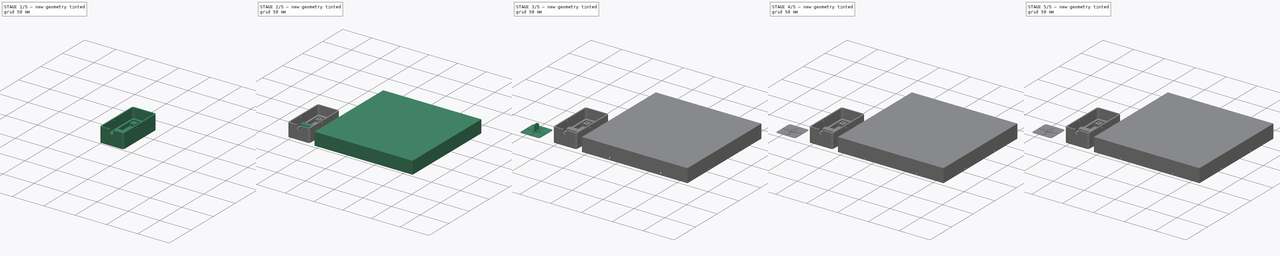
[diagram: build sequence overview — one tinted view per stage of 5, left to right]
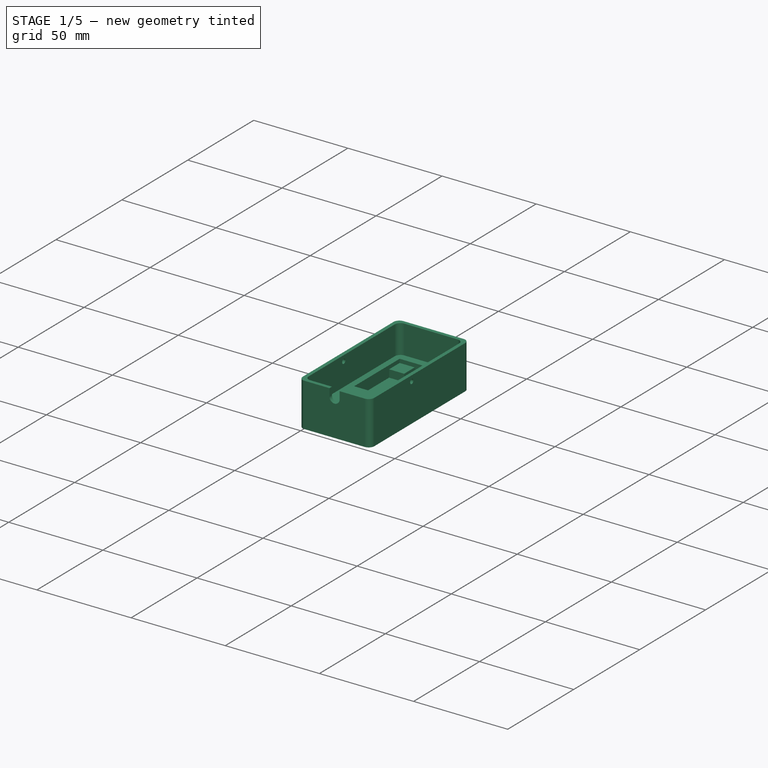
[diagram: stage 1 of 5 — iso view after this stage's code; geometry added in this stage tinted green]
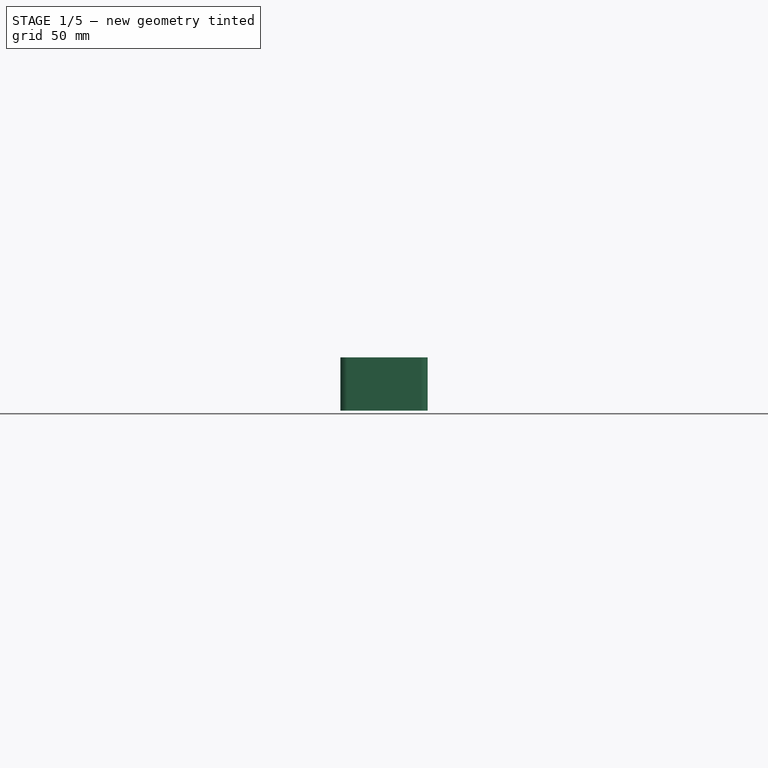
[diagram: stage 1 of 5 — front view after this stage's code; geometry added in this stage tinted green]
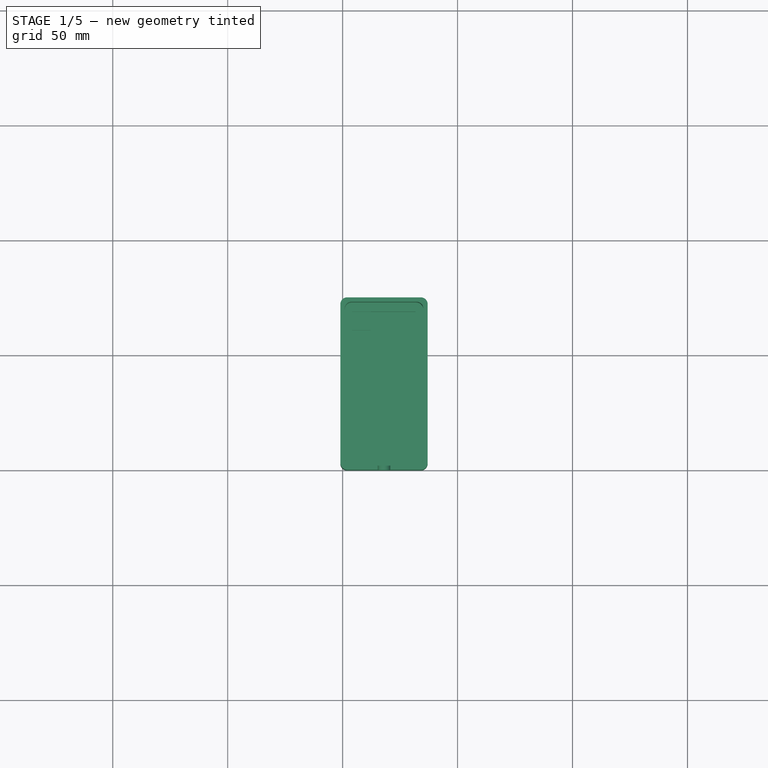
[diagram: stage 1 of 5 — top view after this stage's code; geometry added in this stage tinted green]
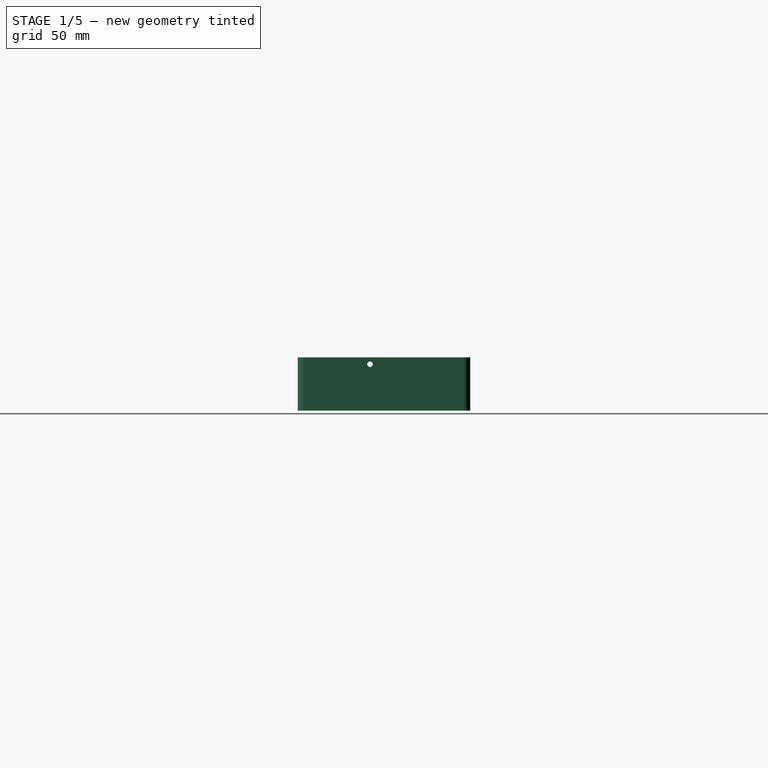
[diagram: stage 1 of 5 — right view after this stage's code; geometry added in this stage tinted green]
FCSTD DOCUMENT  (FreeCAD 0.20R29177 (Git))
Label: serpiente
License: All rights reserved
LicenseURL: http://en.wikipedia.org/wiki/All_rights_reserved
objects: Sketcher::SketchObject×35, PartDesign::Pocket×18, PartDesign::Pad×16, App::DocumentObjectGroup×13, Part::FeaturePython×8, PartDesign::Body×7, Part::Feature×7, PartDesign::Chamfer×2, Part::Cut×2, PartDesign::Fillet×2, Part::Box×1, Part::Part2DObjectPython×1, Part::Extrusion×1
note: 138 computed .brp shape members not serialized (recipe doc carries the construction recipe); baked Part::Feature solids carry a one-line shape summary decoded from their .brp

FEATURE [Sketcher::SketchObject] Sketch002
  FullyConstrained = true
  MapMode = 5
  Support = -> [XY_Plane001]
  sketch-geometry (10):
    g0: ArcOfCircle CenterX=-48 CenterY=72 CenterZ=0 NormalX=0 NormalY=0 NormalZ=1 AngleXU=0 Radius=3 StartAngle=1.5708 EndAngle=3.14159
    g1: LineSegment StartX=-48 StartY=75 StartZ=0 EndX=-16 EndY=75 EndZ=0
    g2: ArcOfCircle CenterX=-16 CenterY=72 CenterZ=0 NormalX=0 NormalY=0 NormalZ=1 AngleXU=0 Radius=3 StartAngle=-1.8e-15 EndAngle=1.5708
    g3: LineSegment StartX=-13 StartY=72 StartZ=0 EndX=-13 EndY=3 EndZ=0
    g4: ArcOfCircle CenterX=-16 CenterY=3 CenterZ=0 NormalX=0 NormalY=0 NormalZ=1 AngleXU=0 Radius=3 StartAngle=4.71239 EndAngle=6.28319
    g5: LineSegment StartX=-16 StartY=0 StartZ=0 EndX=-48 EndY=0 EndZ=0
    g6: ArcOfCircle CenterX=-48 CenterY=3 CenterZ=0 NormalX=0 NormalY=0 NormalZ=1 AngleXU=0 Radius=3 StartAngle=3.14159 EndAngle=4.71239
    g7: LineSegment StartX=-51 StartY=3 StartZ=0 EndX=-51 EndY=72 EndZ=0
    g8: GeomPoint X=-51 Y=75 Z=0
    g9: GeomPoint X=-13 Y=0 Z=0
  constraints (24):
    c: Tangent(g0,g1) = 1.5708
    c: Tangent(g1,g2) = 1.5708
    c: Tangent(g2,g3) = 1.5708
    c: Tangent(g3,g4) = 1.5708
    c: Tangent(g4,g5) = 1.5708
    c: Tangent(g5,g6) = 1.5708
    c: Tangent(g6,g7) = 1.5708
    c: Tangent(g7,g0) = 1.5708
    c: Horizontal(g1)
    c: Horizontal(g5)
    c: Vertical(g3)
    c: Vertical(g7)
    c: Equal(g0,g2)
    c: Equal(g2,g4)
    c: Equal(g4,g6)
    c: PointOnObject(g8,g1)
    c: PointOnObject(g8,g7)
    c: PointOnObject(g9,g3)
    c: PointOnObject(g9,g5)
    c: PointOnObject(g9,g-1)
    c: Radius(g2) = 3
    c: DistanceX(g0,g2) = 38
    c: DistanceY(g4,g1) = 75
    c: DistanceX(g3,g-1) = 13
FEATURE [PartDesign::Pad] Pad002
  Direction = (0,0,1)
  Length = 2
  Length2 = 10
  Profile = -> Sketch002
  ReferenceAxis = -> Sketch002 [N_Axis]
  Refine = true
  Type = 0
FEATURE [Sketcher::SketchObject] Sketch003
  ExternalGeometry = -> [Pad002]
  FullyConstrained = true
  MapMode = 5
  Placement = pos=(0,0,2) rot=(0,0,1;0rad)
  Support = -> [Pad002]
  sketch-geometry (10):
    g0: ArcOfCircle CenterX=-46 CenterY=70 CenterZ=0 NormalX=0 NormalY=0 NormalZ=1 AngleXU=0 Radius=3 StartAngle=1.5708 EndAngle=3.14159
    g1: LineSegment StartX=-46 StartY=73 StartZ=0 EndX=-18 EndY=73 EndZ=0
    g2: ArcOfCircle CenterX=-18 CenterY=70 CenterZ=0 NormalX=0 NormalY=0 NormalZ=1 AngleXU=0 Radius=3 StartAngle=-1.8e-15 EndAngle=1.5708
    g3: LineSegment StartX=-15 StartY=70 StartZ=0 EndX=-15 EndY=5 EndZ=0
    g4: ArcOfCircle CenterX=-18 CenterY=5 CenterZ=0 NormalX=0 NormalY=0 NormalZ=1 AngleXU=0 Radius=3 StartAngle=4.71239 EndAngle=6.28319
    g5: LineSegment StartX=-18 StartY=2 StartZ=0 EndX=-46 EndY=2 EndZ=0
    g6: ArcOfCircle CenterX=-46 CenterY=5 CenterZ=0 NormalX=0 NormalY=0 NormalZ=1 AngleXU=0 Radius=3 StartAngle=3.14159 EndAngle=4.71239
    g7: LineSegment StartX=-49 StartY=5 StartZ=0 EndX=-49 EndY=70 EndZ=0
    g8: GeomPoint X=-49 Y=73 Z=0
    g9: GeomPoint X=-15 Y=2 Z=0
  constraints (24):
    c: Tangent(g0,g1) = 1.5708
    c: Tangent(g1,g2) = 1.5708
    c: Tangent(g2,g3) = 1.5708
    c: Tangent(g3,g4) = 1.5708
    c: Tangent(g4,g5) = 1.5708
    c: Tangent(g5,g6) = 1.5708
    c: Tangent(g6,g7) = 1.5708
    c: Tangent(g7,g0) = 1.5708
    c: Horizontal(g1)
    c: Horizontal(g5)
    c: Vertical(g3)
    c: Vertical(g7)
    c: Equal(g0,g2)
    c: Equal(g2,g4)
    c: Equal(g4,g6)
    c: PointOnObject(g8,g1)
    c: PointOnObject(g8,g7)
    c: PointOnObject(g9,g3)
    c: PointOnObject(g9,g5)
    c: Radius(g4) = 3
    c: DistanceX(g2,g-5) = 2
    c: DistanceY(g0,g-3) = 2
    c: DistanceX(g-8,g6) = 2
    c: DistanceY(g-7,g5) = 2
FEATURE [PartDesign::Pad] Pad003
  BaseFeature = -> Pad002
  Direction = (0,0,1)
  Length = 6
  Length2 = 10
  Profile = -> Sketch003
  ReferenceAxis = -> Sketch003 [N_Axis]
  Refine = true
  Type = 0
FEATURE [Sketcher::SketchObject] Sketch004
  ExternalGeometry = -> [Pad003]
  FullyConstrained = false
  MapMode = 5
  Placement = pos=(0,0,8) rot=(0,0,1;0rad)
  Support = -> [Pad003]
  sketch-geometry (7):
    g0: LineSegment StartX=-45.75 StartY=69 StartZ=0 EndX=-18.25 EndY=69 EndZ=0
    g1: LineSegment StartX=-18.25 StartY=69 StartZ=0 EndX=-18.25 EndY=34.5 EndZ=0
    g2: LineSegment StartX=-18.25 StartY=34.5 StartZ=0 EndX=-45.75 EndY=34.5 EndZ=0
    g3: LineSegment StartX=-45.75 StartY=34.5 StartZ=0 EndX=-45.75 EndY=69 EndZ=0
    g4: GeomPoint X=-45.75 Y=69 Z=0
    g5: GeomPoint X=-18.25 Y=34.5 Z=0
    g6: LineSegment StartX=-32 StartY=-4.28834 StartZ=0 EndX=-32 EndY=77.1227 EndZ=0
  constraints (16):
    c: Horizontal(g2)
    c: Vertical(g1)
    c: Vertical(g3)
    c: PointOnObject(g4,g0)
    c: PointOnObject(g4,g3)
    c: PointOnObject(g5,g1)
    c: PointOnObject(g5,g2)
    c: Symmetric(g-6,g-6,g6)
    c: DistanceY(g0,g-4) = 4
    c: Coincident(g3,g0)
    c: Coincident(g0,g1)
    c: Symmetric(g0,g0,g6)
    c: Coincident(g3,g2)
    c: Coincident(g2,g1)
    c: DistanceX(g2,g2) = 27.5
    c: DistanceY(g1,g1) = 34.5
FEATURE [PartDesign::Pocket] Pocket
  BaseFeature = -> Pad003
  Direction = (0,0,-1)
  Length = 6
  Length2 = 5
  Profile = -> Sketch004
  ReferenceAxis = -> Sketch004 [N_Axis]
  Refine = true
  Type = 0
FEATURE [Sketcher::SketchObject] Sketch013
  FullyConstrained = true
  MapMode = 5
  Support = -> [XY_Plane002]
  sketch-geometry (11):
    g0: ArcOfCircle CenterX=-48 CenterY=72 CenterZ=0 NormalX=0 NormalY=0 NormalZ=1 AngleXU=0 Radius=3 StartAngle=1.5708 EndAngle=3.14159
    g1: LineSegment StartX=-48 StartY=75 StartZ=0 EndX=-16 EndY=75 EndZ=0
    g2: ArcOfCircle CenterX=-16 CenterY=72 CenterZ=0 NormalX=0 NormalY=0 NormalZ=1 AngleXU=0 Radius=3 StartAngle=1.3e-15 EndAngle=1.5708
    g3: LineSegment StartX=-13 StartY=72 StartZ=0 EndX=-13 EndY=3 EndZ=0
    g4: ArcOfCircle CenterX=-16 CenterY=3 CenterZ=0 NormalX=0 NormalY=0 NormalZ=1 AngleXU=0 Radius=3 StartAngle=4.71239 EndAngle=6.28319
    g5: LineSegment StartX=-16 StartY=0 StartZ=0 EndX=-48 EndY=0 EndZ=0
    g6: ArcOfCircle CenterX=-48 CenterY=3 CenterZ=0 NormalX=0 NormalY=0 NormalZ=1 AngleXU=0 Radius=3 StartAngle=3.14159 EndAngle=4.71239
    g7: LineSegment StartX=-51 StartY=3 StartZ=0 EndX=-51 EndY=72 EndZ=0
    g8: GeomPoint X=-51 Y=75 Z=0
    g9: GeomPoint X=-13 Y=0 Z=0
    g10: Circle CenterX=-32 CenterY=53 CenterZ=0 NormalX=0 NormalY=0 NormalZ=1 AngleXU=0 Radius=13
  constraints (27):
    c: Tangent(g0,g1) = 1.5708
    c: Tangent(g1,g2) = 1.5708
    c: Tangent(g2,g3) = 1.5708
    c: Tangent(g3,g4) = 1.5708
    c: Tangent(g4,g5) = 1.5708
    c: Tangent(g5,g6) = 1.5708
    c: Tangent(g6,g7) = 1.5708
    c: Tangent(g7,g0) = 1.5708
    c: Horizontal(g1)
    c: Horizontal(g5)
    c: Vertical(g3)
    c: Vertical(g7)
    c: Equal(g0,g2)
    c: Equal(g2,g4)
    c: Equal(g4,g6)
    c: PointOnObject(g8,g1)
    c: PointOnObject(g8,g7)
    c: PointOnObject(g9,g3)
    c: PointOnObject(g9,g5)
    c: PointOnObject(g9,g-1)
    c: Radius(g2) = 3
    c: DistanceX(g0,g2) = 38
    c: DistanceY(g4,g1) = 75
    c: DistanceX(g3,g-1) = 13
    c: Radius(g10) = 13
    c: DistanceX(g0,g10) = 19
    c: DistanceY(g10,g1) = 22
FEATURE [PartDesign::Pad] Pad007
  Direction = (0,0,1)
  Length = 23.2
  Length2 = 10
  Profile = -> Sketch013
  ReferenceAxis = -> Sketch013 [N_Axis]
  Refine = true
  Type = 0
FEATURE [Sketcher::SketchObject] Sketch014
  ExternalGeometry = -> [Pad007]
  FullyConstrained = true
  MapMode = 5
  Placement = pos=(0,0,23.2) rot=(0,0,1;0rad)
  Support = -> [Pad007]
  sketch-geometry (8):
    g0: LineSegment StartX=-46.1 StartY=73.1 StartZ=0 EndX=-17.9 EndY=73.1 EndZ=0
    g1: LineSegment StartX=-14.9 StartY=70.1 StartZ=0 EndX=-14.9 EndY=4.9 EndZ=0
    g2: LineSegment StartX=-17.9 StartY=1.9 StartZ=0 EndX=-46.1 EndY=1.9 EndZ=0
    g3: LineSegment StartX=-49.1 StartY=4.9 StartZ=0 EndX=-49.1 EndY=70.1 EndZ=0
    g4: ArcOfCircle CenterX=-46.1 CenterY=70.1 CenterZ=0 NormalX=0 NormalY=0 NormalZ=1 AngleXU=0 Radius=3 StartAngle=1.5708 EndAngle=3.14159
    g5: ArcOfCircle CenterX=-17.9 CenterY=70.1 CenterZ=0 NormalX=0 NormalY=0 NormalZ=1 AngleXU=0 Radius=3 StartAngle=-1.8e-15 EndAngle=1.5708
    g6: ArcOfCircle CenterX=-17.9 CenterY=4.9 CenterZ=0 NormalX=0 NormalY=0 NormalZ=1 AngleXU=0 Radius=3 StartAngle=4.71239 EndAngle=6.28319
    g7: ArcOfCircle CenterX=-46.1 CenterY=4.9 CenterZ=0 NormalX=0 NormalY=0 NormalZ=1 AngleXU=0 Radius=3 StartAngle=3.14159 EndAngle=4.71239
  constraints (20):
    c: Horizontal(g0)
    c: Horizontal(g2)
    c: Vertical(g1)
    c: Vertical(g3)
    c: Tangent(g3,g4) = 1.5708
    c: Tangent(g0,g4) = 1.5708
    c: Tangent(g0,g5) = 1.5708
    c: Tangent(g1,g5) = 1.5708
    c: Tangent(g2,g6) = 1.5708
    c: Tangent(g1,g6) = 1.5708
    c: Tangent(g2,g7) = 1.5708
    c: Tangent(g3,g7) = 1.5708
    c: Equal(g7,g6)
    c: Equal(g7,g5)
    c: Equal(g7,g4)
    c: Radius(g7) = 3
    c: DistanceY(g0,g-5) = 1.9
    c: DistanceX(g1,g-4) = 1.9
    c: DistanceY(g-6,g2) = 1.9
    c: DistanceX(g-3,g3) = 1.9
FEATURE [PartDesign::Pocket] Pocket006
  BaseFeature = -> Pad007
  Direction = (0,0,-1)
  Length = 22
  Length2 = 5
  Profile = -> Sketch014
  ReferenceAxis = -> Sketch014 [N_Axis]
  Refine = true
  Type = 0
FEATURE [PartDesign::Chamfer] Chamfer
  Angle = 45
  Base = -> Pocket006 [Edge35]
  BaseFeature = -> Pocket006
  ChamferType = 0
  FlipDirection = false
  Refine = true
  Size = 0.5
  Size2 = 1
  SupportTransform = false
  UseAllEdges = false
FEATURE [Sketcher::SketchObject] Sketch031
  FullyConstrained = false
  MapMode = 5
  Placement = pos=(0,0,0) rot=(1,0,0;1.5708rad)
  sketch-geometry (5):
    g0: LineSegment StartX=-32 StartY=26.0026 StartZ=0 EndX=-32 EndY=-8.78661 EndZ=0
    g1: ArcOfCircle CenterX=-32 CenterY=25.0589 CenterZ=0 NormalX=0 NormalY=0 NormalZ=1 AngleXU=0 Radius=2.7 StartAngle=0 EndAngle=3.14159
    g2: ArcOfCircle CenterX=-32 CenterY=19.2 CenterZ=0 NormalX=0 NormalY=0 NormalZ=1 AngleXU=0 Radius=2.7 StartAngle=3.14159 EndAngle=6.28319
    g3: LineSegment StartX=-34.7 StartY=25.0589 StartZ=0 EndX=-34.7 EndY=19.2 EndZ=0
    g4: LineSegment StartX=-29.3 StartY=19.2 StartZ=0 EndX=-29.3 EndY=25.0589 EndZ=0
  constraints (8):
    c: Tangent(g1,g3) = -1.5708
    c: Tangent(g3,g2) = -1.5708
    c: Tangent(g2,g4) = -1.5708
    c: Tangent(g4,g1) = -1.5708
    c: Equal(g1,g2)
    c: PointOnObject(g2,g0)
    c: Vertical(g3)
    c: Radius(g2) = 2.7
FEATURE [PartDesign::Pocket] Pocket017
  BaseFeature = -> Chamfer
  Direction = (0,1,-2e-16)
  Length = 5
  Length2 = 5
  Profile = -> Sketch031
  ReferenceAxis = -> Sketch031 [N_Axis]
  Refine = true
  Type = 0
FEATURE [Sketcher::SketchObject] Sketch040
  FullyConstrained = false
  MapMode = 5
  Placement = pos=(0,0,2) rot=(0,0,1;0rad)
  sketch-geometry (8):
    g0: LineSegment StartX=-45.75 StartY=69 StartZ=0 EndX=-37.75 EndY=69 EndZ=0
    g1: LineSegment StartX=-37.75 StartY=69 StartZ=0 EndX=-37.75 EndY=61 EndZ=0
    g2: LineSegment StartX=-37.75 StartY=61 StartZ=0 EndX=-45.75 EndY=61 EndZ=0
    g3: LineSegment StartX=-45.75 StartY=61 StartZ=0 EndX=-45.75 EndY=69 EndZ=0
    g4: LineSegment StartX=-18.25 StartY=34.5 StartZ=0 EndX=-26.25 EndY=34.5 EndZ=0
    g5: LineSegment StartX=-26.25 StartY=34.5 StartZ=0 EndX=-26.25 EndY=42.5 EndZ=0
    g6: LineSegment StartX=-26.25 StartY=42.5 StartZ=0 EndX=-18.25 EndY=42.5 EndZ=0
    g7: LineSegment StartX=-18.25 StartY=42.5 StartZ=0 EndX=-18.25 EndY=34.5 EndZ=0
  constraints (20):
    c: Coincident(g0,g1)
    c: Coincident(g1,g2)
    c: Coincident(g2,g3)
    c: Coincident(g3,g0)
    c: Horizontal(g0)
    c: Horizontal(g2)
    c: Vertical(g1)
    c: Vertical(g3)
    c: Coincident(g4,g5)
    c: Coincident(g5,g6)
    c: Coincident(g6,g7)
    c: Coincident(g7,g4)
    c: Horizontal(g4)
    c: Horizontal(g6)
    c: Vertical(g5)
    c: Vertical(g7)
    c: Equal(g2,g1)
    c: Equal(g1,g6)
    c: Equal(g6,g5)
    c: DistanceX(g2,g2) = 8
FEATURE [PartDesign::Pad] Pad019
  BaseFeature = -> Pocket
  Direction = (0,0,1)
  Length = 4
  Length2 = 10
  Profile = -> Sketch040
  ReferenceAxis = -> Sketch040 [N_Axis]
  Refine = true
  Type = 0
FEATURE [PartDesign::Body] Body001
  Group = -> [Sketch002,Pad002,Sketch003,Pad003,Sketch004,Pocket,Sketch040,Pad019,Sketch041,Pocket020002,Sketch043,Pad020,Sketch044,Pocket020004,Sketch048,Pocket020007,Sketch051,Pocket020008,Sketch052,Pocket020009,Sketch053,Pocket020010,Sketch054,Pocket020011]
  Origin = -> Origin001
  Tip = -> Pocket020011
FEATURE [App::DocumentObjectGroup] Group003  label="Base_"
  Group = -> [Body001]
FEATURE [Sketcher::SketchObject] Sketch055
  ExternalGeometry = -> [Pocket017]
  FullyConstrained = true
  MapMode = 5
  Placement = pos=(-51,0,0) rot=(0.57735,-0.57735,-0.57735;2.0944rad)
  Support = -> [Pocket017]
  sketch-geometry (1):
    g0: Circle CenterX=-31.42 CenterY=20.2 CenterZ=0 NormalX=0 NormalY=0 NormalZ=1 AngleXU=0 Radius=1.2
  constraints (3):
    c: DistanceX(g0,g-1) = 31.42
    c: Radius(g0) = 1.2
    c: DistanceY(g0,g-3) = 3
FEATURE [PartDesign::Pocket] Pocket020012
  BaseFeature = -> Pocket017
  Direction = (1,0,0)
  Length = 5
  Length2 = 5
  Profile = -> Sketch055
  ReferenceAxis = -> Sketch055 [N_Axis]
  Refine = true
  Type = 1
FEATURE [PartDesign::Body] Body002
  Group = -> [Sketch013,Pad007,Sketch014,Pocket006,Chamfer,Sketch031,Pocket017,Sketch055,Pocket020012]
  Origin = -> Origin002
  Placement = pos=(-64,0,0) rot=(0,1,0;3.14159rad)
  Tip = -> Pocket020012
FEATURE [App::DocumentObjectGroup] Group004  label="Caja_"
  Group = -> [Body002]
FEATURE [App::DocumentObjectGroup] Group002  label="Joystick"
  Group = -> [Group003,Group004,Group008]
FEATURE [Part::Feature] Pocket020012001  label="Caja-joystick-m"
  Placement = pos=(-64,0,25.2) rot=(0,1,0;3.14159rad)
  shape: bbox 38 x 75 x 23.2 mm, 26 faces (baked)
FEATURE [App::DocumentObjectGroup] Group010  label="Joystick-m"
  Group = -> [Clone008001,Clone008003002001,Pocket020012001]
FEATURE [App::DocumentObjectGroup] Group009  label="montajes"
  Group = -> [Group010,Group011]
FEATURE [Part::FeaturePython] Clone008003002002  label="Caja-joystick"  # Draft clone (typed FeaturePython)
  AttacherType = Attacher::AttachEngine3D
  Fuse = false
  Objects = -> [Pocket020012]
  Scale = (1,1,1)
FEATURE [App::DocumentObjectGroup] Group001  label="impresion"
  Group = -> [Clone,Clone004,Clone005,Clone008,Clone008002,Clone008003002,Clone008003002002]
note: 1 file-system path scrubbed to <path> (originals preserved in the JSON sidecar)
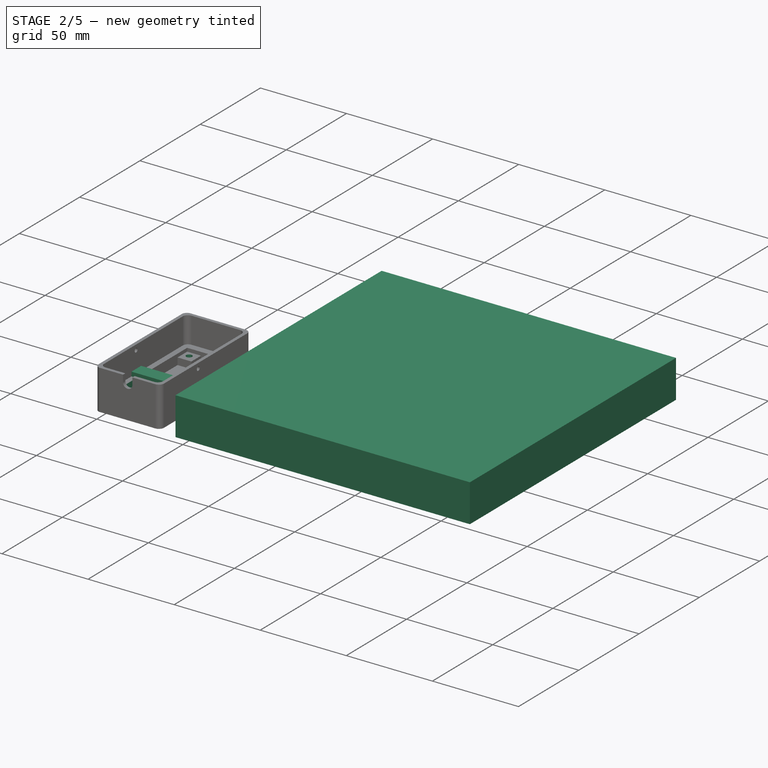
[diagram: stage 2 of 5 — iso view after this stage's code; geometry added in this stage tinted green]
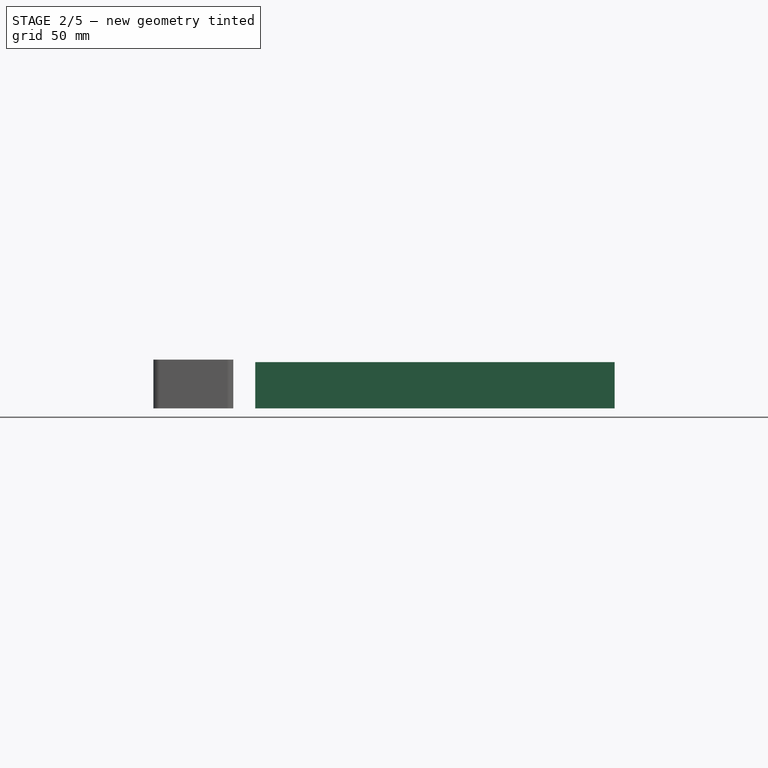
[diagram: stage 2 of 5 — front view after this stage's code; geometry added in this stage tinted green]
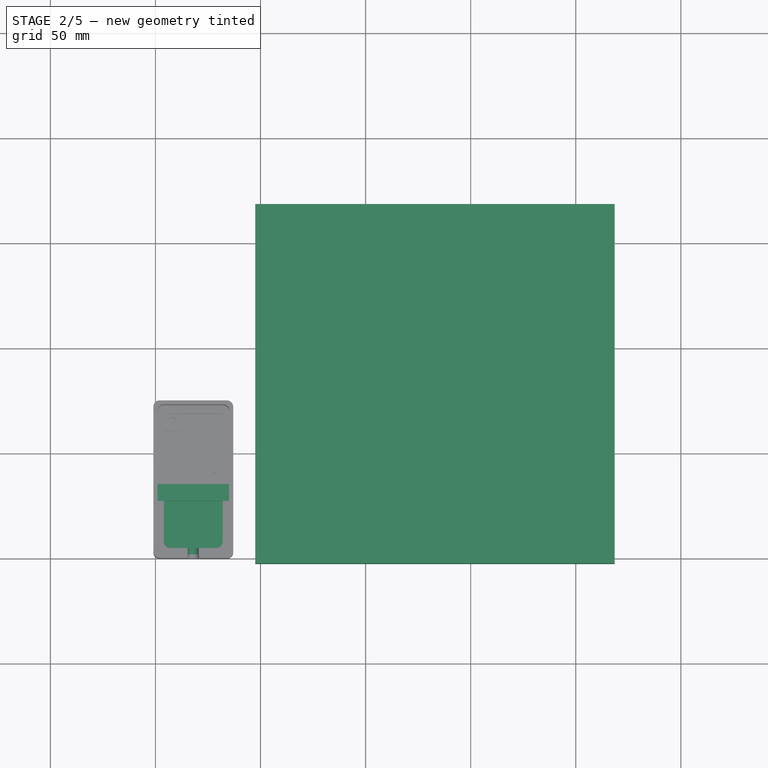
[diagram: stage 2 of 5 — top view after this stage's code; geometry added in this stage tinted green]
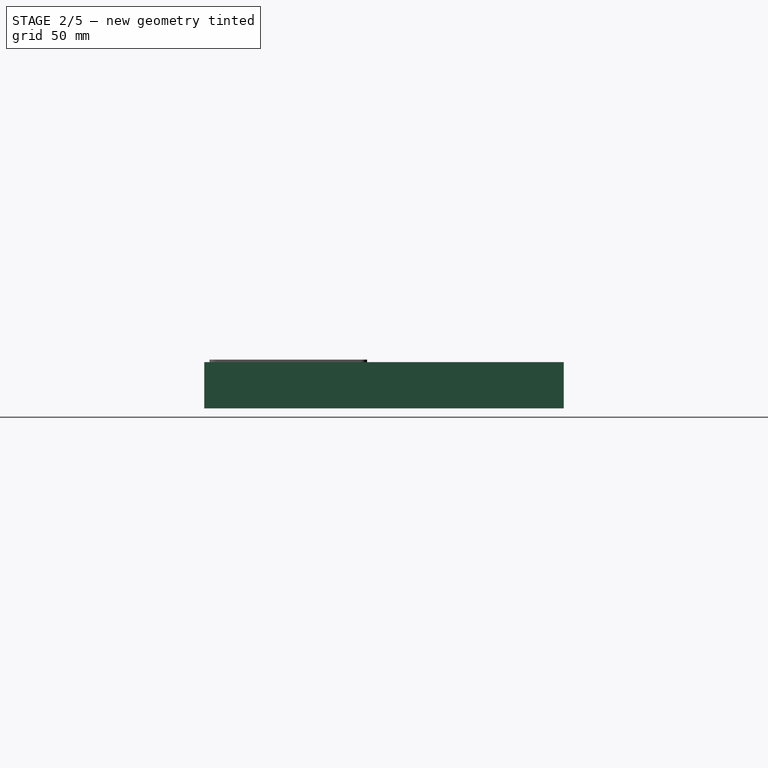
[diagram: stage 2 of 5 — right view after this stage's code; geometry added in this stage tinted green]
FEATURE [Part::Feature] Clone011  label="Rejilla-m"
  Placement = pos=(0,0,35.5) rot=(0,0,1;0rad)
  shape: bbox 160 x 160 x 4 mm, 1022 faces (baked)
FEATURE [Part::Feature] Clone004001  label="Base-caja-matriz-m"
  shape: bbox 166 x 166 x 16 mm, 82 faces (baked)
FEATURE [Part::Feature] Clone005001  label="Soporte-inferior-m"
  Placement = pos=(0,0,24) rot=(0,0,1;0rad)
  shape: bbox 159 x 159 x 5 mm, 27 faces (baked)
FEATURE [Part::Feature] Clone008001  label="Flechas-m"
  Placement = pos=(57,4,45) rot=(0,0,1;0rad)
  shape: bbox 32 x 32 x 1.2 mm, 73 faces (baked)
FEATURE [Sketcher::SketchObject] Sketch036
  FullyConstrained = true
  MapMode = 5
  Support = -> [XY_Plane006]
  sketch-geometry (8):
    g0: LineSegment StartX=0 StartY=0 StartZ=0 EndX=166 EndY=0 EndZ=0
    g1: LineSegment StartX=166 StartY=0 StartZ=0 EndX=166 EndY=166 EndZ=0
    g2: LineSegment StartX=166 StartY=166 StartZ=0 EndX=0 EndY=166 EndZ=0
    g3: LineSegment StartX=0 StartY=166 StartZ=0 EndX=0 EndY=0 EndZ=0
    g4: LineSegment StartX=-2.5 StartY=168.5 StartZ=0 EndX=168.5 EndY=168.5 EndZ=0
    g5: LineSegment StartX=168.5 StartY=168.5 StartZ=0 EndX=168.5 EndY=-2.5 EndZ=0
    g6: LineSegment StartX=168.5 StartY=-2.5 StartZ=0 EndX=-2.5 EndY=-2.5 EndZ=0
    g7: LineSegment StartX=-2.5 StartY=-2.5 StartZ=0 EndX=-2.5 EndY=168.5 EndZ=0
  constraints (23):
    c: Coincident(g0,g1)
    c: Coincident(g1,g2)
    c: Coincident(g2,g3)
    c: Coincident(g3,g0)
    c: Horizontal(g0)
    c: Horizontal(g2)
    c: Vertical(g1)
    c: Vertical(g3)
    c: Coincident(g0,g-1)
    c: Equal(g2,g1)
    c: DistanceY(g1,g1) = 166
    c: Coincident(g4,g5)
    c: Coincident(g5,g6)
    c: Coincident(g6,g7)
    c: Coincident(g7,g4)
    c: Horizontal(g4)
    c: Horizontal(g6)
    c: Vertical(g5)
    c: Vertical(g7)
    c: DistanceX(g6,g0) = 2.5
    c: DistanceX(g0,g5) = 2.5
    c: DistanceY(g1,g4) = 2.5
    c: DistanceY(g6,g0) = 2.5
FEATURE [PartDesign::Pad] Pad018
  Direction = (0,0,1)
  Length = 22
  Length2 = 10
  Profile = -> Sketch036
  ReferenceAxis = -> Sketch036 [N_Axis]
  Refine = true
  Type = 0
FEATURE [Sketcher::SketchObject] Sketch041
  FullyConstrained = true
  MapMode = 5
  Placement = pos=(0,0,6) rot=(0,0,1;0rad)
  sketch-geometry (6):
    g0: LineSegment StartX=-42.2 StartY=65.5 StartZ=0 EndX=-22 EndY=65.5 EndZ=0
    g1: LineSegment StartX=-22 StartY=65.5 StartZ=0 EndX=-22 EndY=39 EndZ=0
    g2: LineSegment StartX=-22 StartY=39 StartZ=0 EndX=-42.2 EndY=39 EndZ=0
    g3: LineSegment StartX=-42.2 StartY=39 StartZ=0 EndX=-42.2 EndY=65.5 EndZ=0
    g4: Circle CenterX=-42.2 CenterY=65.5 CenterZ=0 NormalX=0 NormalY=0 NormalZ=1 AngleXU=0 Radius=1.7
    g5: Circle CenterX=-22 CenterY=39 CenterZ=0 NormalX=0 NormalY=0 NormalZ=1 AngleXU=0 Radius=1.7
  constraints (16):
    c: Coincident(g0,g1)
    c: Coincident(g1,g2)
    c: Coincident(g2,g3)
    c: Coincident(g3,g0)
    c: Horizontal(g0)
    c: Horizontal(g2)
    c: Vertical(g1)
    c: Vertical(g3)
    c: DistanceX(g0,g0) = 20.2
    c: DistanceY(g1,g1) = 26.5
    c: Coincident(g4,g0)
    c: Coincident(g5,g1)
    c: Equal(g4,g5)
    c: Radius(g4) = 1.7
    c: DistanceX(g5,g-1) = 22
    c: DistanceY(g-1,g5) = 39
FEATURE [PartDesign::Pocket] Pocket020002
  BaseFeature = -> Pad019
  Direction = (0,0,-1)
  Length = 5
  Length2 = 5
  Profile = -> Sketch041
  ReferenceAxis = -> Sketch041 [N_Axis]
  Refine = true
  Type = 1
FEATURE [Sketcher::SketchObject] Sketch043
  FullyConstrained = false
  MapMode = 5
  Placement = pos=(0,0,2) rot=(0,0,1;0rad)
  sketch-geometry (4):
    g0: LineSegment StartX=-49 StartY=35.4192 StartZ=0 EndX=-15 EndY=35.4192 EndZ=0
    g1: LineSegment StartX=-15 StartY=35.4192 StartZ=0 EndX=-15 EndY=27.4192 EndZ=0
    g2: LineSegment StartX=-15 StartY=27.4192 StartZ=0 EndX=-49 EndY=27.4192 EndZ=0
    g3: LineSegment StartX=-49 StartY=27.4192 StartZ=0 EndX=-49 EndY=35.4192 EndZ=0
  constraints (9):
    c: Coincident(g0,g1)
    c: Coincident(g1,g2)
    c: Coincident(g2,g3)
    c: Coincident(g3,g0)
    c: Horizontal(g0)
    c: Horizontal(g2)
    c: Vertical(g1)
    c: Vertical(g3)
    c: DistanceY(g3,g3) = 8
FEATURE [PartDesign::Pad] Pad020
  BaseFeature = -> Pocket020002
  Direction = (0,0,1)
  Length = 8.5
  Length2 = 10
  Profile = -> Sketch043
  ReferenceAxis = -> Sketch043 [N_Axis]
  Refine = true
  Type = 0
FEATURE [Sketcher::SketchObject] Sketch044
  ExternalGeometry = -> [Pad020]
  FullyConstrained = true
  MapMode = 5
  Placement = pos=(-51,0,0) rot=(0.57735,-0.57735,-0.57735;2.0944rad)
  Support = -> [Pad020]
  sketch-geometry (6):
    g0: LineSegment StartX=-71 StartY=0 StartZ=0 EndX=-76 EndY=0 EndZ=0
    g1: LineSegment StartX=-76 StartY=0 StartZ=0 EndX=-76 EndY=9 EndZ=0
    g2: LineSegment StartX=-73 StartY=6 StartZ=0 EndX=-74 EndY=6 EndZ=0
    g3: LineSegment StartX=-71 StartY=9 StartZ=0 EndX=-71 EndY=0 EndZ=0
    g4: ArcOfCircle CenterX=-74 CenterY=9 CenterZ=0 NormalX=0 NormalY=0 NormalZ=1 AngleXU=0 Radius=3 StartAngle=3.5547e-12 EndAngle=4.71239
    g5: ArcOfCircle CenterX=-73 CenterY=9 CenterZ=0 NormalX=0 NormalY=0 NormalZ=1 AngleXU=0 Radius=3 StartAngle=4.71239 EndAngle=9.42478
  constraints (16):
    c: Coincident(g0,g1)
    c: Coincident(g3,g0)
    c: Horizontal(g0)
    c: Horizontal(g2)
    c: Vertical(g1)
    c: Vertical(g3)
    c: Tangent(g3,g4) = 1.5708
    c: Tangent(g2,g4) = 1.5708
    c: Tangent(g2,g5) = 1.5708
    c: Tangent(g1,g5) = 1.5708
    c: Equal(g5,g4)
    c: Radius(g5) = 3
    c: DistanceY(g-3,g2) = 4
    c: DistanceX(g0,g-4) = 4
    c: DistanceX(g-4,g0) = 4
    c: PointOnObject(g0,g-4)
FEATURE [PartDesign::Pocket] Pocket020004
  BaseFeature = -> Pad020
  Direction = (1,0,0)
  Length = 6
  Length2 = 5
  Profile = -> Sketch044
  ReferenceAxis = -> Sketch044 [N_Axis]
  Refine = true
  Type = 0
FEATURE [Sketcher::SketchObject] Sketch048
  FullyConstrained = false
  MapMode = 5
  Placement = pos=(0,0,0) rot=(1,0,0;3.14159rad)
  sketch-geometry (2):
    g0: Circle CenterX=-22.25 CenterY=-38.5 CenterZ=0 NormalX=0 NormalY=0 NormalZ=1 AngleXU=0 Radius=3
    g1: Circle CenterX=-42.45 CenterY=-65 CenterZ=0 NormalX=0 NormalY=0 NormalZ=1 AngleXU=0 Radius=3
  constraints (1):
    c: Radius(g1) = 3
FEATURE [PartDesign::Pocket] Pocket020007
  BaseFeature = -> Pocket020004
  Direction = (0,0,1)
  Length = 2.5
  Length2 = 5
  Profile = -> Sketch048
  ReferenceAxis = -> Sketch048 [N_Axis]
  Refine = true
  Type = 0
FEATURE [Sketcher::SketchObject] Sketch051
  ExternalGeometry = -> [Pocket020007]
  FullyConstrained = true
  MapMode = 5
  Placement = pos=(0,0,8) rot=(0,0,1;0rad)
  Support = -> [Pocket020007]
  sketch-geometry (6):
    g0: LineSegment StartX=-46 StartY=27.4192 StartZ=0 EndX=-18 EndY=27.4192 EndZ=0
    g1: LineSegment StartX=-18 StartY=27.4192 StartZ=0 EndX=-18 EndY=8 EndZ=0
    g2: LineSegment StartX=-21 StartY=5 StartZ=0 EndX=-43 EndY=5 EndZ=0
    g3: LineSegment StartX=-46 StartY=8 StartZ=0 EndX=-46 EndY=27.4192 EndZ=0
    g4: ArcOfCircle CenterX=-43 CenterY=8 CenterZ=0 NormalX=0 NormalY=0 NormalZ=1 AngleXU=0 Radius=3 StartAngle=3.14159 EndAngle=4.71239
    g5: ArcOfCircle CenterX=-21 CenterY=8 CenterZ=0 NormalX=0 NormalY=0 NormalZ=1 AngleXU=0 Radius=3 StartAngle=4.71239 EndAngle=6.28319
  constraints (15):
    c: Coincident(g0,g1)
    c: Coincident(g3,g0)
    c: Horizontal(g2)
    c: Vertical(g1)
    c: Vertical(g3)
    c: Tangent(g3,g4) = 1.5708
    c: Tangent(g2,g4) = 1.5708
    c: Tangent(g2,g5) = 1.5708
    c: Tangent(g1,g5) = 1.5708
    c: Equal(g5,g4)
    c: Radius(g5) = 3
    c: DistanceX(g-3,g0) = 3
    c: DistanceX(g0,g-3) = 3
    c: Tangent(g0,g-3) = 1.5708
    c: DistanceY(g-4,g2) = 3
FEATURE [PartDesign::Pocket] Pocket020008
  BaseFeature = -> Pocket020007
  Direction = (0,0,-1)
  Length = 6
  Length2 = 5
  Profile = -> Sketch051
  ReferenceAxis = -> Sketch051 [N_Axis]
  Refine = true
  Type = 0
FEATURE [Sketcher::SketchObject] Sketch052
  ExternalGeometry = -> [Pocket020008]
  FullyConstrained = false
  MapMode = 5
  Placement = pos=(0,2,0) rot=(1,0,0;1.5708rad)
  Support = -> [Pocket020008]
  sketch-geometry (5):
    g0: LineSegment StartX=-32 StartY=13.4868 StartZ=0 EndX=-32 EndY=4.2581 EndZ=0
    g1: ArcOfCircle CenterX=-32 CenterY=4.6 CenterZ=0 NormalX=0 NormalY=0 NormalZ=1 AngleXU=0 Radius=2.6 StartAngle=3.14159 EndAngle=6.28319
    g2: ArcOfCircle CenterX=-32 CenterY=13.5819 CenterZ=0 NormalX=0 NormalY=0 NormalZ=1 AngleXU=0 Radius=2.6 StartAngle=2e-16 EndAngle=3.14159
    g3: LineSegment StartX=-29.4 StartY=4.6 StartZ=0 EndX=-29.4 EndY=13.5819 EndZ=0
    g4: LineSegment StartX=-34.6 StartY=13.5819 StartZ=0 EndX=-34.6 EndY=4.6 EndZ=0
  constraints (10):
    c: Symmetric(g-3,g-3,g0)
    c: Tangent(g1,g3) = -1.5708
    c: Tangent(g3,g2) = -1.5708
    c: Tangent(g2,g4) = -1.5708
    c: Tangent(g4,g1) = -1.5708
    c: Equal(g1,g2)
    c: Vertical(g4)
    c: Tangent(g1,g-4)
    c: DistanceX(g1,g0) = 0
    c: Radius(g1) = 2.6
FEATURE [PartDesign::Pocket] Pocket020009
  BaseFeature = -> Pocket020008
  Direction = (0,1,-2e-16)
  Length = 5
  Length2 = 5
  Profile = -> Sketch052
  ReferenceAxis = -> Sketch052 [N_Axis]
  Refine = true
  Type = 0
FEATURE [Sketcher::SketchObject] Sketch053
  ExternalGeometry = -> [Pocket020009]
  FullyConstrained = false
  MapMode = 5
  Placement = pos=(-49,0,0) rot=(0.57735,-0.57735,-0.57735;2.0944rad)
  Support = -> [Pocket020009]
  sketch-geometry (2):
    g0: LineSegment StartX=-31.4192 StartY=12.6508 StartZ=0 EndX=-31.4192 EndY=-3.26546 EndZ=0
    g1: Circle CenterX=-31.4192 CenterY=5 CenterZ=0 NormalX=0 NormalY=0 NormalZ=1 AngleXU=0 Radius=1.2
  constraints (4):
    c: Symmetric(g-3,g-3,g0)
    c: PointOnObject(g1,g0)
    c: Radius(g1) = 1.2
    c: DistanceY(g1) = 5
FEATURE [PartDesign::Pocket] Pocket020010
  BaseFeature = -> Pocket020009
  Direction = (1,0,0)
  Length = 5
  Length2 = 5
  Profile = -> Sketch053
  ReferenceAxis = -> Sketch053 [N_Axis]
  Refine = true
  Type = 1
FEATURE [Part::FeaturePython] Clone008003002  label="Base-Joystick"  # Draft clone (typed FeaturePython)
  AttacherType = Attacher::AttachEngine3D
  Fuse = false
  Objects = -> [Pocket020010]
  Scale = (1,1,1)
FEATURE [Part::Feature] Clone008003002001  label="Base-jpystick-m"
  shape: bbox 38 x 75 x 10.5 mm, 52 faces (baked)
FEATURE [Sketcher::SketchObject] Sketch054
  ExternalGeometry = -> [Pocket020010]
  FullyConstrained = true
  MapMode = 5
  Placement = pos=(0,35.4192,0) rot=(0,0.707107,0.707107;3.14159rad)
  Support = -> [Pocket020010]
  sketch-geometry (4):
    g0: LineSegment StartX=18.25 StartY=6 StartZ=0 EndX=45.75 EndY=6 EndZ=0
    g1: LineSegment StartX=45.75 StartY=6 StartZ=0 EndX=45.75 EndY=8 EndZ=0
    g2: LineSegment StartX=45.75 StartY=8 StartZ=0 EndX=18.25 EndY=8 EndZ=0
    g3: LineSegment StartX=18.25 StartY=8 StartZ=0 EndX=18.25 EndY=6 EndZ=0
  constraints (10):
    c: Coincident(g0,g1)
    c: Coincident(g1,g2)
    c: Coincident(g2,g3)
    c: Coincident(g3,g0)
    c: Horizontal(g2)
    c: Vertical(g1)
    c: Vertical(g3)
    c: Coincident(g0,g-3)
    c: Coincident(g0,g-4)
    c: DistanceY(g3,g3) = 2
FEATURE [PartDesign::Pocket] Pocket020011
  BaseFeature = -> Pocket020010
  Direction = (0,-1,2e-16)
  Length = 1.6
  Length2 = 5
  Profile = -> Sketch054
  ReferenceAxis = -> Sketch054 [N_Axis]
  Refine = true
  Type = 0
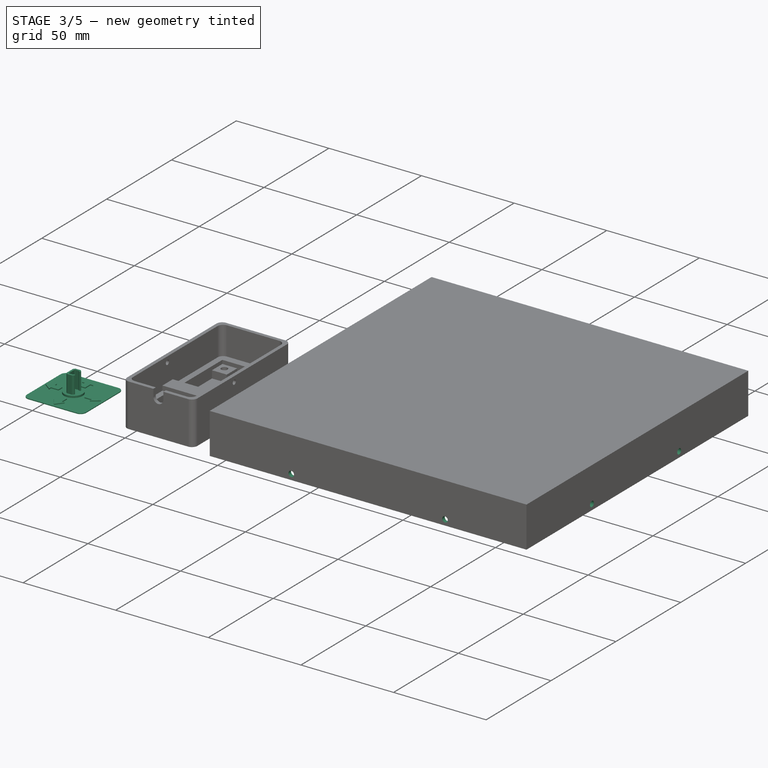
[diagram: stage 3 of 5 — iso view after this stage's code; geometry added in this stage tinted green]
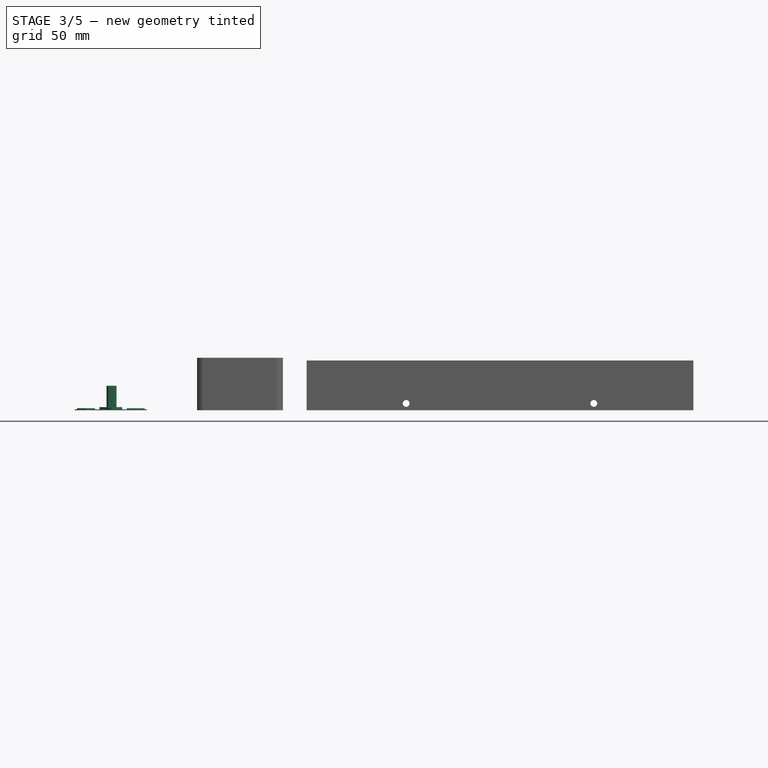
[diagram: stage 3 of 5 — front view after this stage's code; geometry added in this stage tinted green]
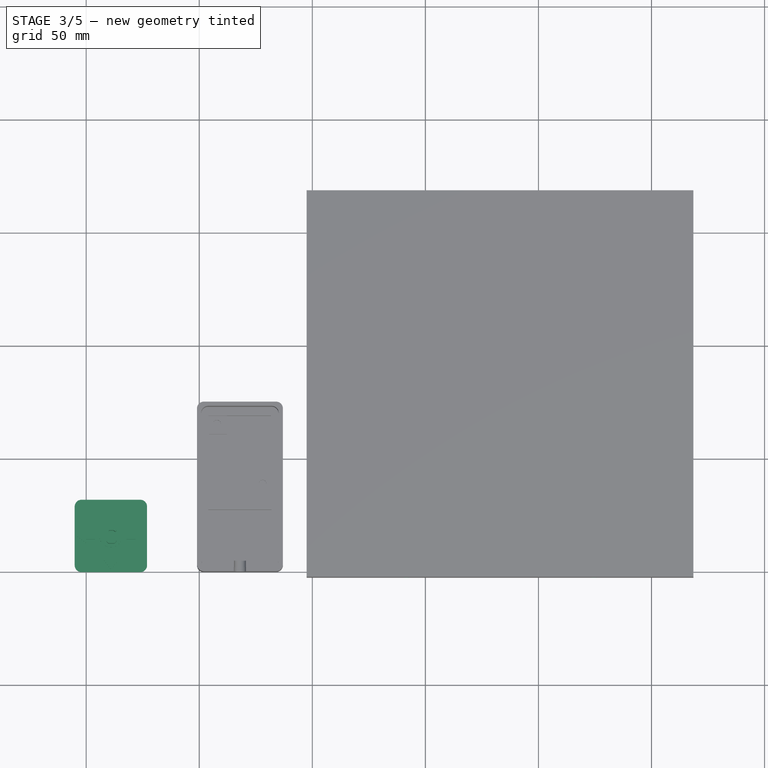
[diagram: stage 3 of 5 — top view after this stage's code; geometry added in this stage tinted green]
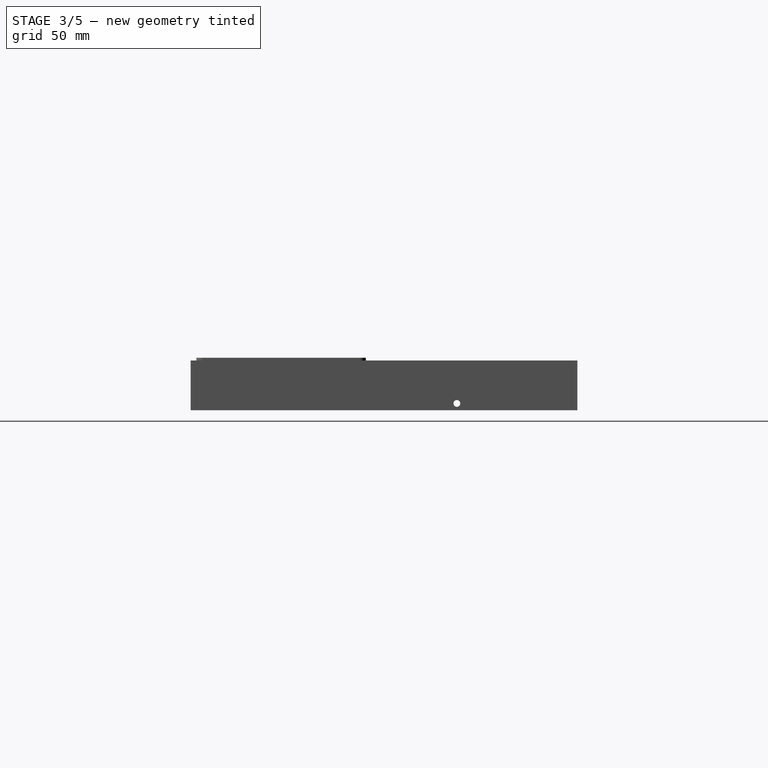
[diagram: stage 3 of 5 — right view after this stage's code; geometry added in this stage tinted green]
FEATURE [Sketcher::SketchObject] Sketch032
  FullyConstrained = false
  MapMode = 5
  Support = -> [XY_Plane005]
  sketch-geometry (4):
    g0: LineSegment StartX=-105.081 StartY=0 StartZ=0 EndX=-73.0807 EndY=0 EndZ=0
    g1: LineSegment StartX=-73.0807 StartY=0 StartZ=0 EndX=-73.0807 EndY=32 EndZ=0
    g2: LineSegment StartX=-73.0807 StartY=32 StartZ=0 EndX=-105.081 EndY=32 EndZ=0
    g3: LineSegment StartX=-105.081 StartY=32 StartZ=0 EndX=-105.081 EndY=0 EndZ=0
  constraints (11):
    c: Coincident(g0,g1)
    c: Coincident(g1,g2)
    c: Coincident(g2,g3)
    c: Coincident(g3,g0)
    c: Horizontal(g0)
    c: Horizontal(g2)
    c: Vertical(g1)
    c: Vertical(g3)
    c: PointOnObject(g0,g-1)
    c: DistanceX(g2,g2) = 32
    c: Equal(g1,g2)
FEATURE [PartDesign::Pad] Pad014
  Direction = (0,0,1)
  Length = 0.4
  Length2 = 10
  Profile = -> Sketch032
  ReferenceAxis = -> Sketch032 [N_Axis]
  Refine = true
  Type = 0
FEATURE [Sketcher::SketchObject] Sketch033
  ExternalGeometry = -> [Pad014]
  FullyConstrained = false
  MapMode = 5
  Placement = pos=(0,0,0.4) rot=(0,0,1;0rad)
  Support = -> [Pad014]
  sketch-geometry (16):
    g0: LineSegment StartX=-89.0807 StartY=31 StartZ=0 EndX=-86.0807 EndY=27 EndZ=0
    g1: LineSegment StartX=-86.0807 StartY=27 StartZ=0 EndX=-87.5807 EndY=27 EndZ=0
    g2: LineSegment StartX=-87.5807 StartY=27 StartZ=0 EndX=-87.5807 EndY=23 EndZ=0
    g3: LineSegment StartX=-87.5807 StartY=23 StartZ=0 EndX=-90.5807 EndY=23 EndZ=0
    g4: LineSegment StartX=-90.5807 StartY=23 StartZ=0 EndX=-90.5807 EndY=27 EndZ=0
    g5: LineSegment StartX=-90.5807 StartY=27 StartZ=0 EndX=-92.0807 EndY=27 EndZ=0
    g6: LineSegment StartX=-92.0807 StartY=27 StartZ=0 EndX=-89.0807 EndY=31 EndZ=0
    g7: LineSegment StartX=-89.0807 StartY=31 StartZ=0 EndX=-89.0807 EndY=-2.20646 EndZ=0
    g8: LineSegment StartX=-107.209 StartY=16 StartZ=0 EndX=-70.6336 EndY=16 EndZ=0
    g9: LineSegment StartX=-89.0807 StartY=1 StartZ=0 EndX=-86.0807 EndY=5 EndZ=0
    g10: LineSegment StartX=-86.0807 StartY=5 StartZ=0 EndX=-87.5807 EndY=5 EndZ=0
    g11: LineSegment StartX=-87.5807 StartY=5 StartZ=0 EndX=-87.5807 EndY=9 EndZ=0
    g12: LineSegment StartX=-87.5807 StartY=9 StartZ=0 EndX=-90.5807 EndY=9 EndZ=0
    g13: LineSegment StartX=-90.5807 StartY=9 StartZ=0 EndX=-90.5807 EndY=5 EndZ=0
    g14: LineSegment StartX=-90.5807 StartY=5 StartZ=0 EndX=-92.0807 EndY=5 EndZ=0
    g15: LineSegment StartX=-92.0807 StartY=5 StartZ=0 EndX=-89.0807 EndY=1 EndZ=0
  constraints (30):
    c: Coincident(g0,g1)
    c: Coincident(g1,g2)
    c: Coincident(g2,g3)
    c: Coincident(g3,g4)
    c: Vertical(g4)
    c: Coincident(g4,g5)
    c: Coincident(g5,g6)
    c: Coincident(g6,g0)
    c: Horizontal(g5)
    c: Horizontal(g1)
    c: Vertical(g2)
    c: Horizontal(g3)
    c: Equal(g1,g5)
    c: Coincident(g7,g0)
    c: Symmetric(g5,g0,g7)
    c: Symmetric(g-3,g-3,g7)
    c: DistanceX(g3,g3) = 3
    c: DistanceX(g1,g1) = 1.5
    c: DistanceY(g2,g2) = 4  '5'
    c: DistanceY(g2,g0) = 8
    c: DistanceY(g0,g-3) = 1
    c: Symmetric(g-3,g-4,g8)
    c: Coincident(g9,g10)
    c: Coincident(g10,g11)
    c: Coincident(g11,g12)
    c: Coincident(g12,g13)
    c: Coincident(g13,g14)
    c: Coincident(g14,g15)
    c: Coincident(g15,g9)
    c: Equal(g10,g14)
FEATURE [PartDesign::Pad] Pad015
  BaseFeature = -> Pad014
  Direction = (0,0,1)
  Length = 0.5
  Length2 = 10
  Profile = -> Sketch033
  ReferenceAxis = -> Sketch033 [N_Axis]
  Refine = true
  Type = 0
FEATURE [Sketcher::SketchObject] Sketch034
  ExternalGeometry = -> [Pad015]
  FullyConstrained = false
  MapMode = 5
  Placement = pos=(0,0,0.4) rot=(0,0,1;0rad)
  Support = -> [Pad015]
  sketch-geometry (16):
    g0: LineSegment StartX=-108.175 StartY=16 StartZ=0 EndX=-70.2341 EndY=16 EndZ=0
    g1: LineSegment StartX=-74.0807 StartY=16 StartZ=0 EndX=-78.0807 EndY=13 EndZ=0
    g2: LineSegment StartX=-78.0807 StartY=13 StartZ=0 EndX=-78.0807 EndY=14.5 EndZ=0
    g3: LineSegment StartX=-78.0807 StartY=14.5 StartZ=0 EndX=-82.0807 EndY=14.5 EndZ=0
    g4: LineSegment StartX=-82.0807 StartY=14.5 StartZ=0 EndX=-82.0807 EndY=17.5 EndZ=0
    g5: LineSegment StartX=-82.0807 StartY=17.5 StartZ=0 EndX=-78.0807 EndY=17.5 EndZ=0
    g6: LineSegment StartX=-78.0807 StartY=17.5 StartZ=0 EndX=-78.0807 EndY=19 EndZ=0
    g7: LineSegment StartX=-78.0807 StartY=19 StartZ=0 EndX=-74.0807 EndY=16 EndZ=0
    g8: LineSegment StartX=-89.0807 StartY=19.2136 StartZ=0 EndX=-89.0807 EndY=12.6078 EndZ=0
    g9: LineSegment StartX=-104.081 StartY=16 StartZ=0 EndX=-100.081 EndY=13 EndZ=0
    g10: LineSegment StartX=-100.081 StartY=13 StartZ=0 EndX=-100.081 EndY=14.5 EndZ=0
    g11: LineSegment StartX=-100.081 StartY=14.5 StartZ=0 EndX=-96.0807 EndY=14.5 EndZ=0
    g12: LineSegment StartX=-96.0807 StartY=14.5 StartZ=0 EndX=-96.0807 EndY=17.5 EndZ=0
    g13: LineSegment StartX=-96.0807 StartY=17.5 StartZ=0 EndX=-100.081 EndY=17.5 EndZ=0
    g14: LineSegment StartX=-100.081 StartY=17.5 StartZ=0 EndX=-100.081 EndY=19 EndZ=0
    g15: LineSegment StartX=-100.081 StartY=19 StartZ=0 EndX=-104.081 EndY=16 EndZ=0
  constraints (28):
    c: Symmetric(g-4,g-4,g0)
    c: PointOnObject(g1,g0)
    c: Coincident(g1,g2)
    c: Coincident(g2,g3)
    c: Coincident(g3,g4)
    c: Coincident(g4,g5)
    c: Coincident(g5,g6)
    c: Vertical(g6)
    c: Coincident(g6,g7)
    c: Coincident(g7,g1)
    c: DistanceX(g1,g-4) = 1
    c: Horizontal(g5)
    c: Horizontal(g3)
    c: Vertical(g2)
    c: Symmetric(g6,g1,g0)
    c: Symmetric(g4,g3,g0)
    c: DistanceY(g4,g4) = 3
    c: DistanceX(g3,g3) = 4
    c: DistanceY(g2,g2) = 1.5
    c: DistanceX(g3,g1) = 8
    c: Symmetric(g-4,g-3,g8)
    c: Coincident(g9,g10)
    c: Coincident(g10,g11)
    c: Coincident(g11,g12)
    c: Coincident(g12,g13)
    c: Coincident(g13,g14)
    c: Coincident(g14,g15)
    c: Coincident(g15,g9)
FEATURE [PartDesign::Pad] Pad016
  BaseFeature = -> Pad015
  Direction = (0,0,1)
  Length = 0.5
  Length2 = 10
  Profile = -> Sketch034
  ReferenceAxis = -> Sketch034 [N_Axis]
  Refine = true
  Type = 0
FEATURE [Sketcher::SketchObject] Sketch035
  ExternalGeometry = -> [Pad016]
  FullyConstrained = true
  MapMode = 5
  Placement = pos=(0,0,0.4) rot=(0,0,1;0rad)
  Support = -> [Pad016]
  sketch-geometry (1):
    g0: Circle CenterX=-89.0807 CenterY=16 CenterZ=0 NormalX=0 NormalY=0 NormalZ=1 AngleXU=0 Radius=5
  constraints (4):
    c: DistanceX(g-3,g-3) = 32
    c: DistanceX(g0,g-4) = 16
    c: DistanceY(g-4,g0) = 16
    c: Radius(g0) = 5
FEATURE [PartDesign::Pad] Pad017
  BaseFeature = -> Pad016
  Direction = (0,0,1)
  Length = 1
  Length2 = 10
  Profile = -> Sketch035
  ReferenceAxis = -> Sketch035 [N_Axis]
  Refine = true
  Type = 0
FEATURE [PartDesign::Fillet] Fillet005
  Base = -> Pad017 [Edge1,Edge5,Edge8,Edge2]
  BaseFeature = -> Pad017
  Radius = 3
  Refine = true
  SupportTransform = false
  UseAllEdges = false
FEATURE [PartDesign::Body] Body005
  Group = -> [Sketch032,Pad014,Sketch033,Pad015,Sketch034,Pad016,Sketch035,Pad017,Fillet005]
  Origin = -> Origin005
  Tip = -> Fillet005
FEATURE [Part::Part2DObjectPython] ShapeString  # Draft 2D object (typed FeaturePython)
  FontFile = <path>
  MakeFace = true
  Placement = pos=(-91,12.6,0.8) rot=(0,0,1;0rad)
  Size = 4
  String = C
  Tracking = 0
FEATURE [Part::Extrusion] Extrude
  Base = -> ShapeString
  Dir = (0,0,1)
  DirMode = 2
  FaceMakerClass = Part::FaceMakerBullseye
  LengthFwd = 10
  LengthRev = 0
  Solid = false
  Symmetric = false
FEATURE [Sketcher::SketchObject] Sketch037
  FullyConstrained = true
  MapMode = 5
  Placement = pos=(0,0,0) rot=(1,0,0;3.14159rad)
  Support = -> [Pad018]
  sketch-geometry (8):
    g0: LineSegment StartX=0 StartY=0 StartZ=0 EndX=166 EndY=0 EndZ=0
    g1: LineSegment StartX=166 StartY=0 StartZ=0 EndX=166 EndY=-166 EndZ=0
    g2: LineSegment StartX=166 StartY=-166 StartZ=0 EndX=0 EndY=-166 EndZ=0
    g3: LineSegment StartX=0 StartY=-166 StartZ=0 EndX=0 EndY=0 EndZ=0
    g4: LineSegment StartX=-0.5 StartY=0.5 StartZ=0 EndX=166.5 EndY=0.5 EndZ=0
    g5: LineSegment StartX=166.5 StartY=0.5 StartZ=0 EndX=166.5 EndY=-166.5 EndZ=0
    g6: LineSegment StartX=166.5 StartY=-166.5 StartZ=0 EndX=-0.5 EndY=-166.5 EndZ=0
    g7: LineSegment StartX=-0.5 StartY=-166.5 StartZ=0 EndX=-0.5 EndY=0.5 EndZ=0
  constraints (23):
    c: Coincident(g0,g1)
    c: Coincident(g1,g2)
    c: Coincident(g2,g3)
    c: Coincident(g3,g0)
    c: Horizontal(g0)
    c: Horizontal(g2)
    c: Vertical(g1)
    c: Vertical(g3)
    c: Coincident(g0,g-1)
    c: Equal(g1,g2)
    c: DistanceY(g1,g1) = 166
    c: Coincident(g4,g5)
    c: Coincident(g5,g6)
    c: Coincident(g6,g7)
    c: Coincident(g7,g4)
    c: Horizontal(g4)
    c: Horizontal(g6)
    c: Vertical(g5)
    c: Vertical(g7)
    c: DistanceX(g4,g0) = 0.5
    c: DistanceY(g0,g4) = 0.5
    c: DistanceX(g0,g4) = 0.5
    c: DistanceY(g5,g1) = 0.5
FEATURE [PartDesign::Pocket] Pocket018
  BaseFeature = -> Pad018
  Direction = (0,0,1)
  Length = 21.5
  Length2 = 5
  Profile = -> Sketch037
  ReferenceAxis = -> Sketch037 [N_Axis]
  Refine = true
  Type = 0
FEATURE [Sketcher::SketchObject] Sketch038
  FullyConstrained = false
  MapMode = 5
  Placement = pos=(0,-2.5,0) rot=(1,0,0;1.5708rad)
  Support = -> [Pocket018]
  sketch-geometry (6):
    g0: LineSegment StartX=0 StartY=30.7134 StartZ=0 EndX=166 EndY=30.7134 EndZ=0
    g1: LineSegment StartX=83 StartY=35.0972 StartZ=0 EndX=83 EndY=-10.0879 EndZ=0
    g2: LineSegment StartX=41.5 StartY=3 StartZ=0 EndX=124.5 EndY=3 EndZ=0
    g3: Circle CenterX=41.5 CenterY=3 CenterZ=0 NormalX=0 NormalY=0 NormalZ=1 AngleXU=0 Radius=1.5
    g4: Circle CenterX=124.5 CenterY=3 CenterZ=0 NormalX=0 NormalY=0 NormalZ=1 AngleXU=0 Radius=1.5
    g5: LineSegment StartX=0 StartY=3 StartZ=0 EndX=83 EndY=3 EndZ=0
  constraints (14):
    c: PointOnObject(g0,g-2)
    c: Horizontal(g0)
    c: DistanceX(g0,g0) = 166
    c: Symmetric(g0,g0,g1)
    c: DistanceY(g-1,g2) = 3
    c: Coincident(g3,g2)
    c: Coincident(g4,g2)
    c: Equal(g3,g4)
    c: Radius(g3) = 1.5
    c: Symmetric(g3,g4,g1)
    c: PointOnObject(g5,g-2)
    c: PointOnObject(g5,g1)
    c: Horizontal(g5)
    c: Symmetric(g5,g5,g3)
FEATURE [PartDesign::Pocket] Pocket019
  BaseFeature = -> Pocket018
  Direction = (0,1,-2e-16)
  Length = 5
  Length2 = 5
  Profile = -> Sketch038
  ReferenceAxis = -> Sketch038 [N_Axis]
  Refine = true
  Type = 1
FEATURE [Sketcher::SketchObject] Sketch039
  FullyConstrained = false
  MapMode = 5
  Placement = pos=(168.5,0,0) rot=(0.57735,0.57735,0.57735;2.0944rad)
  Support = -> [Pocket019]
  sketch-geometry (6):
    g0: LineSegment StartX=0 StartY=24.98 StartZ=0 EndX=163.221 EndY=24.98 EndZ=0
    g1: LineSegment StartX=81.6104 StartY=33.2023 StartZ=0 EndX=81.6104 EndY=-16.4245 EndZ=0
    g2: LineSegment StartX=14.3517 StartY=3 StartZ=0 EndX=81.6104 EndY=3 EndZ=0
    g3: LineSegment StartX=47.9811 StartY=3 StartZ=0 EndX=115.24 EndY=3 EndZ=0
    g4: Circle CenterX=47.9811 CenterY=3 CenterZ=0 NormalX=0 NormalY=0 NormalZ=1 AngleXU=0 Radius=1.5
    g5: Circle CenterX=115.24 CenterY=3 CenterZ=0 NormalX=0 NormalY=0 NormalZ=1 AngleXU=0 Radius=1.5
  constraints (12):
    c: PointOnObject(g0,g-2)
    c: Horizontal(g0)
    c: PointOnObject(g2,g1)
    c: Horizontal(g2)
    c: DistanceY(g-1,g2) = 3
    c: Symmetric(g0,g0,g1)
    c: Symmetric(g3,g3,g1)
    c: Coincident(g4,g3)
    c: Coincident(g5,g3)
    c: Equal(g5,g4)
    c: Radius(g5) = 1.5
    c: Symmetric(g2,g2,g4)
FEATURE [PartDesign::Pocket] Pocket020
  BaseFeature = -> Pocket019
  Direction = (-1,0,0)
  Length = 5
  Length2 = 5
  Profile = -> Sketch039
  ReferenceAxis = -> Sketch039 [N_Axis]
  Refine = true
  Type = 1
FEATURE [PartDesign::Body] Body006
  Group = -> [Sketch036,Pad018,Sketch037,Pocket018,Sketch038,Pocket019,Sketch039,Pocket020]
  Origin = -> Origin006
  Tip = -> Pocket020
FEATURE [App::DocumentObjectGroup] Group012  label="tapa_"
  Group = -> [Body006]
FEATURE [App::DocumentObjectGroup] Group005  label="Caja-matriz_"
  Group = -> [Group006,Group012]
FEATURE [Part::Feature] Pocket020001  label="tapa-m"
  Placement = pos=(0,0,48) rot=(0,0,1;0rad)
  shape: bbox 171 x 171 x 22 mm, 19 faces (baked)
FEATURE [App::DocumentObjectGroup] Group011  label="matriz-m"
  Group = -> [Clone011,Clone004001,Clone005001,Pocket020001]
FEATURE [Part::FeaturePython] Clone008002  label="tapa"  # Draft clone (typed FeaturePython)
  AttacherType = Attacher::AttachEngine3D
  Fuse = false
  Objects = -> [Pocket020]
  Scale = (1,1,1)
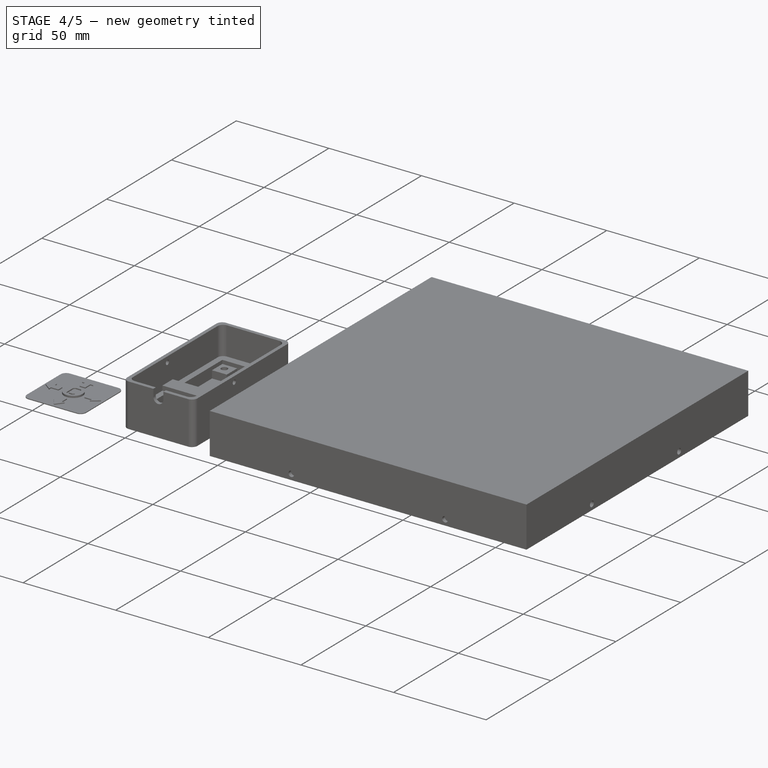
[diagram: stage 4 of 5 — iso view after this stage's code; geometry added in this stage tinted green]
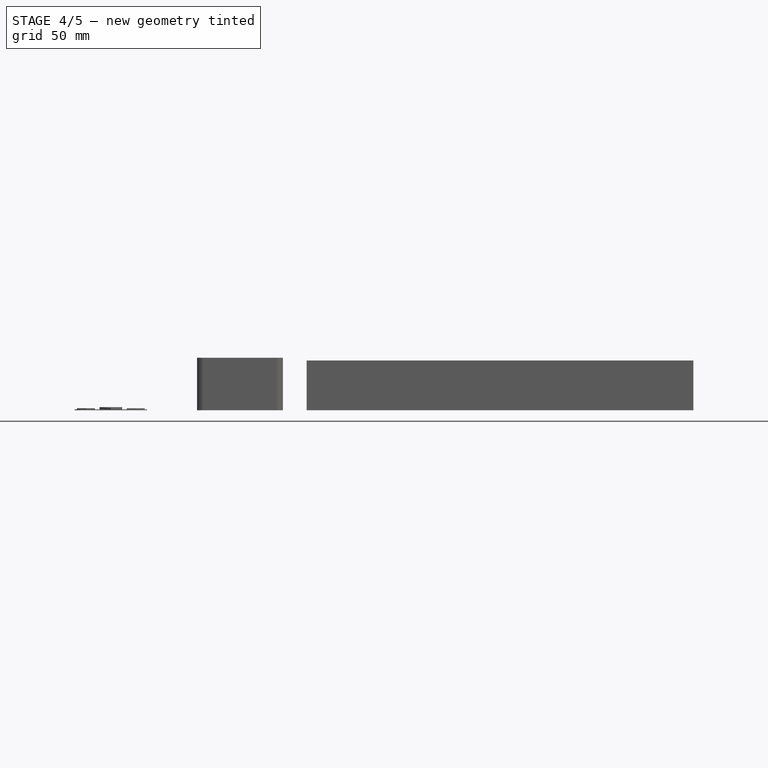
[diagram: stage 4 of 5 — front view after this stage's code; geometry added in this stage tinted green]
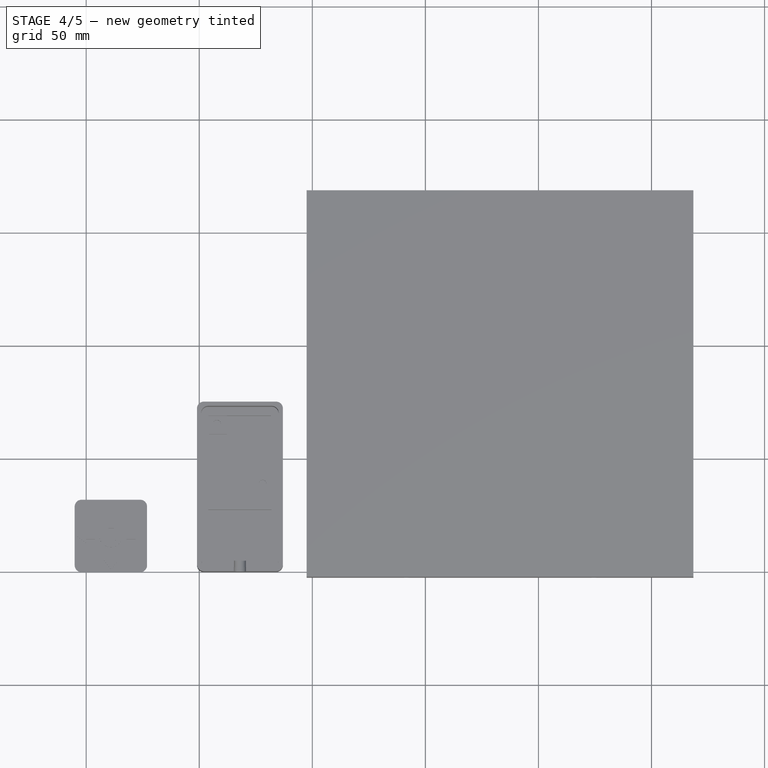
[diagram: stage 4 of 5 — top view after this stage's code; geometry added in this stage tinted green]
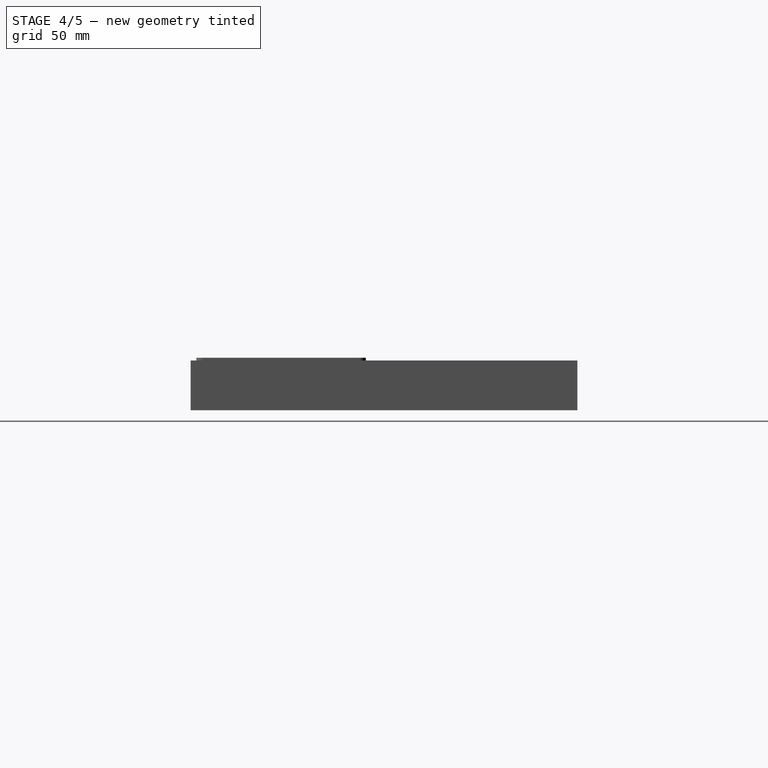
[diagram: stage 4 of 5 — right view after this stage's code; geometry added in this stage tinted green]
FEATURE [Sketcher::SketchObject] Sketch018
  FullyConstrained = true
  MapMode = 5
  Support = -> [XY_Plane003]
  sketch-geometry (8):
    g0: LineSegment StartX=3 StartY=3 StartZ=0 EndX=163 EndY=3 EndZ=0
    g1: LineSegment StartX=163 StartY=3 StartZ=0 EndX=163 EndY=163 EndZ=0
    g2: LineSegment StartX=163 StartY=163 StartZ=0 EndX=3 EndY=163 EndZ=0
    g3: LineSegment StartX=3 StartY=163 StartZ=0 EndX=3 EndY=3 EndZ=0
    g4: LineSegment StartX=0 StartY=166 StartZ=0 EndX=166 EndY=166 EndZ=0
    g5: LineSegment StartX=166 StartY=166 StartZ=0 EndX=166 EndY=0 EndZ=0
    g6: LineSegment StartX=166 StartY=0 StartZ=0 EndX=0 EndY=0 EndZ=0
    g7: LineSegment StartX=0 StartY=0 StartZ=0 EndX=0 EndY=166 EndZ=0
  constraints (23):
    c: Coincident(g0,g1)
    c: Coincident(g1,g2)
    c: Coincident(g2,g3)
    c: Coincident(g3,g0)
    c: Horizontal(g0)
    c: Horizontal(g2)
    c: Vertical(g1)
    c: Vertical(g3)
    c: Equal(g2,g1)
    c: DistanceX(g2,g2) = 160
    c: Coincident(g4,g5)
    c: Coincident(g5,g6)
    c: Coincident(g6,g7)
    c: Coincident(g7,g4)
    c: Horizontal(g4)
    c: Horizontal(g6)
    c: Vertical(g5)
    c: Vertical(g7)
    c: Equal(g4,g5)
    c: DistanceX(g4,g4) = 166
    c: DistanceY(g6,g0) = 3
    c: DistanceX(g1,g4) = 3
    c: Coincident(g6,g-1)
FEATURE [PartDesign::Pad] Pad009
  Direction = (0,0,1)
  Length = 16
  Length2 = 10
  Profile = -> Sketch018
  ReferenceAxis = -> Sketch018 [N_Axis]
  Refine = true
  Type = 0
FEATURE [Sketcher::SketchObject] Sketch019
  ExternalGeometry = -> [Pad009]
  FullyConstrained = true
  MapMode = 5
  Placement = pos=(0,0,16) rot=(0,0,1;0rad)
  Support = -> [Pad009]
  sketch-geometry (4):
    g0: LineSegment StartX=3 StartY=163 StartZ=0 EndX=163 EndY=163 EndZ=0
    g1: LineSegment StartX=163 StartY=163 StartZ=0 EndX=163 EndY=3 EndZ=0
    g2: LineSegment StartX=163 StartY=3 StartZ=0 EndX=3 EndY=3 EndZ=0
    g3: LineSegment StartX=3 StartY=3 StartZ=0 EndX=3 EndY=163 EndZ=0
  constraints (12):
    c: Coincident(g0,g1)
    c: Coincident(g1,g2)
    c: Coincident(g2,g3)
    c: Coincident(g3,g0)
    c: Horizontal(g0)
    c: Horizontal(g2)
    c: Vertical(g1)
    c: Vertical(g3)
    c: Equal(g2,g1)
    c: DistanceX(g0,g0) = 160
    c: DistanceX(g-3,g0) = 3
    c: DistanceY(g-4,g1) = 3
FEATURE [PartDesign::Pocket] Pocket009
  BaseFeature = -> Pad009
  Direction = (0,0,-1)
  Length = 13
  Length2 = 5
  Profile = -> Sketch019
  ReferenceAxis = -> Sketch019 [N_Axis]
  Refine = true
  Type = 0
FEATURE [Sketcher::SketchObject] Sketch020
  ExternalGeometry = -> [Pocket009]
  FullyConstrained = false
  MapMode = 5
  Placement = pos=(0,0,3) rot=(0,0,1;0rad)
  Support = -> [Pocket009]
  sketch-geometry (19):
    g0: LineSegment StartX=11 StartY=155 StartZ=0 EndX=155 EndY=155 EndZ=0
    g1: LineSegment StartX=155 StartY=155 StartZ=0 EndX=155 EndY=11 EndZ=0
    g2: LineSegment StartX=155 StartY=11 StartZ=0 EndX=11 EndY=11 EndZ=0
    g3: LineSegment StartX=11 StartY=11 StartZ=0 EndX=11 EndY=155 EndZ=0
    g4: LineSegment StartX=11 StartY=83 StartZ=0 EndX=155 EndY=83 EndZ=0
    g5: LineSegment StartX=155 StartY=83 StartZ=0 EndX=155 EndY=83.5147 EndZ=0
    g6: LineSegment StartX=11 StartY=83.5147 StartZ=0 EndX=11 EndY=83 EndZ=0
    g7: LineSegment StartX=83 StartY=155 StartZ=0 EndX=82.8365 EndY=155 EndZ=0
    g8: LineSegment StartX=83 StartY=83 StartZ=0 EndX=83 EndY=11 EndZ=0
    g9: LineSegment StartX=83 StartY=11 StartZ=0 EndX=83.1528 EndY=11 EndZ=0
    g10: Circle CenterX=11 CenterY=155 CenterZ=0 NormalX=0 NormalY=0 NormalZ=1 AngleXU=0 Radius=5
    g11: Circle CenterX=83 CenterY=155 CenterZ=0 NormalX=0 NormalY=0 NormalZ=1 AngleXU=0 Radius=5
    g12: Circle CenterX=155 CenterY=155 CenterZ=0 NormalX=0 NormalY=0 NormalZ=1 AngleXU=0 Radius=5
    g13: Circle CenterX=11 CenterY=83 CenterZ=0 NormalX=0 NormalY=0 NormalZ=1 AngleXU=0 Radius=5
    g14: Circle CenterX=83 CenterY=83 CenterZ=0 NormalX=0 NormalY=0 NormalZ=1 AngleXU=0 Radius=5
    g15: Circle CenterX=155 CenterY=83 CenterZ=0 NormalX=0 NormalY=0 NormalZ=1 AngleXU=0 Radius=5
    g16: Circle CenterX=11 CenterY=11 CenterZ=0 NormalX=0 NormalY=0 NormalZ=1 AngleXU=0 Radius=5
    g17: Circle CenterX=83 CenterY=11 CenterZ=0 NormalX=0 NormalY=0 NormalZ=1 AngleXU=0 Radius=5
    g18: Circle CenterX=155 CenterY=11 CenterZ=0 NormalX=0 NormalY=0 NormalZ=1 AngleXU=0 Radius=5
  constraints (44):
    c: Coincident(g0,g1)
    c: Coincident(g1,g2)
    c: Coincident(g2,g3)
    c: Coincident(g3,g0)
    c: Horizontal(g0)
    c: Horizontal(g2)
    c: Vertical(g1)
    c: Vertical(g3)
    c: Coincident(g4,g5)
    c: Coincident(g6,g4)
    c: Horizontal(g4)
    c: Vertical(g5)
    c: Vertical(g6)
    c: PointOnObject(g4,g3)
    c: Coincident(g8,g9)
    c: Horizontal(g7)
    c: Horizontal(g9)
    c: PointOnObject(g8,g2)
    c: Symmetric(g0,g0,g7)
    c: Symmetric(g0,g1,g4)
    c: PointOnObject(g8,g4)
    c: Coincident(g10,g0)
    c: Coincident(g11,g7)
    c: Coincident(g12,g0)
    c: Coincident(g13,g4)
    c: Coincident(g14,g8)
    c: Coincident(g15,g4)
    c: Coincident(g16,g2)
    c: Coincident(g17,g8)
    c: Coincident(g18,g1)
    c: Symmetric(g16,g18,g8)
    c: Equal(g16,g17)
    c: Equal(g16,g18)
    c: Equal(g16,g15)
    c: Equal(g16,g14)
    c: Equal(g16,g13)
    c: Equal(g16,g10)
    c: Equal(g16,g11)
    c: Equal(g16,g12)
    c: Radius(g16) = 5
    c: DistanceX(g-3,g10) = 8
    c: DistanceX(g12,g-3) = 8
    c: DistanceY(g10,g-3) = 8
    c: DistanceY(g-5,g18) = 8
FEATURE [PartDesign::Pad] Pad010
  BaseFeature = -> Pocket009
  Direction = (0,0,1)
  Length = 12
  Length2 = 10
  Profile = -> Sketch020
  ReferenceAxis = -> Sketch020 [N_Axis]
  Refine = true
  Type = 0
FEATURE [Sketcher::SketchObject] Sketch021
  ExternalGeometry = -> [Pad010]
  FullyConstrained = false
  MapMode = 5
  Placement = pos=(0,0,3) rot=(0,0,1;0rad)
  Support = -> [Pad010]
  sketch-geometry (5):
    g0: LineSegment StartX=63 StartY=143 StartZ=0 EndX=103 EndY=143 EndZ=0
    g1: LineSegment StartX=103 StartY=143 StartZ=0 EndX=103 EndY=133 EndZ=0
    g2: LineSegment StartX=103 StartY=133 StartZ=0 EndX=63 EndY=133 EndZ=0
    g3: LineSegment StartX=63 StartY=133 StartZ=0 EndX=63 EndY=143 EndZ=0
    g4: LineSegment StartX=83 StartY=116.791 StartZ=0 EndX=83 EndY=161.079 EndZ=0
  constraints (12):
    c: Coincident(g0,g1)
    c: Coincident(g1,g2)
    c: Coincident(g2,g3)
    c: Coincident(g3,g0)
    c: Horizontal(g2)
    c: Vertical(g1)
    c: Vertical(g3)
    c: Symmetric(g0,g0,g4)
    c: Symmetric(g-3,g-3,g4)
    c: DistanceX(g0,g0) = 40
    c: DistanceY(g1,g1) = 10
    c: DistanceY(g0,g-3) = 20
FEATURE [PartDesign::Pocket] Pocket010
  BaseFeature = -> Pad010
  Direction = (0,0,-1)
  Length = 5
  Length2 = 5
  Profile = -> Sketch021
  ReferenceAxis = -> Sketch021 [N_Axis]
  Refine = true
  Type = 0
FEATURE [Sketcher::SketchObject] Sketch022
  ExternalGeometry = -> [Pocket010]
  FullyConstrained = true
  MapMode = 5
  Placement = pos=(0,0,3) rot=(0,0,1;0rad)
  Support = -> [Pocket010]
  sketch-geometry (8):
    g0: LineSegment StartX=63 StartY=143 StartZ=0 EndX=103 EndY=143 EndZ=0
    g1: LineSegment StartX=103 StartY=143 StartZ=0 EndX=103 EndY=133 EndZ=0
    g2: LineSegment StartX=103 StartY=133 StartZ=0 EndX=63 EndY=133 EndZ=0
    g3: LineSegment StartX=63 StartY=133 StartZ=0 EndX=63 EndY=143 EndZ=0
    g4: LineSegment StartX=60 StartY=146 StartZ=0 EndX=106 EndY=146 EndZ=0
    g5: LineSegment StartX=106 StartY=146 StartZ=0 EndX=106 EndY=130 EndZ=0
    g6: LineSegment StartX=106 StartY=130 StartZ=0 EndX=60 EndY=130 EndZ=0
    g7: LineSegment StartX=60 StartY=130 StartZ=0 EndX=60 EndY=146 EndZ=0
  constraints (22):
    c: Coincident(g0,g1)
    c: Coincident(g1,g2)
    c: Coincident(g2,g3)
    c: Coincident(g3,g0)
    c: Horizontal(g0)
    c: Horizontal(g2)
    c: Vertical(g1)
    c: Vertical(g3)
    c: Coincident(g0,g-3)
    c: Coincident(g1,g-4)
    c: Coincident(g4,g5)
    c: Coincident(g5,g6)
    c: Coincident(g6,g7)
    c: Coincident(g7,g4)
    c: Horizontal(g4)
    c: Horizontal(g6)
    c: Vertical(g5)
    c: Vertical(g7)
    c: DistanceX(g6,g2) = 3
    c: DistanceX(g0,g4) = 3
    c: DistanceY(g5,g1) = 3
    c: DistanceY(g0,g4) = 3
FEATURE [PartDesign::Pad] Pad011
  BaseFeature = -> Pocket010
  Direction = (0,0,1)
  Length = 5
  Length2 = 10
  Profile = -> Sketch022
  ReferenceAxis = -> Sketch022 [N_Axis]
  Refine = true
  Type = 0
FEATURE [PartDesign::Chamfer] Chamfer001
  Angle = 45
  Base = -> Pad011 [Edge37,Edge36,Edge38,Edge39]
  BaseFeature = -> Pad011
  ChamferType = 0
  FlipDirection = false
  Refine = true
  Size = 2
  Size2 = 1
  SupportTransform = false
  UseAllEdges = false
FEATURE [Sketcher::SketchObject] Sketch026
  FullyConstrained = false
  MapMode = 5
  Support = -> [XY_Plane004]
  sketch-geometry (37):
    g0: LineSegment StartX=3 StartY=3 StartZ=0 EndX=163 EndY=3 EndZ=0
    g1: LineSegment StartX=163 StartY=3 StartZ=0 EndX=163 EndY=163 EndZ=0
    g2: LineSegment StartX=163 StartY=163 StartZ=0 EndX=3 EndY=163 EndZ=0
    g3: LineSegment StartX=3 StartY=163 StartZ=0 EndX=3 EndY=3 EndZ=0
    g4: LineSegment StartX=11 StartY=155 StartZ=0 EndX=155 EndY=155 EndZ=0
    g5: LineSegment StartX=155 StartY=155 StartZ=0 EndX=155 EndY=11 EndZ=0
    g6: LineSegment StartX=155 StartY=11 StartZ=0 EndX=11 EndY=11 EndZ=0
    g7: LineSegment StartX=11 StartY=11 StartZ=0 EndX=11 EndY=155 EndZ=0
    g8: LineSegment StartX=83 StartY=11 StartZ=0 EndX=83 EndY=83 EndZ=0
    g9: LineSegment StartX=83 StartY=155 StartZ=0 EndX=83 EndY=139.466 EndZ=0
    g10: LineSegment StartX=11 StartY=83 StartZ=0 EndX=83 EndY=83 EndZ=0
    g11: LineSegment StartX=83 StartY=83 StartZ=0 EndX=155 EndY=83 EndZ=0
    g12: LineSegment StartX=3.5 StartY=162.5 StartZ=0 EndX=162.5 EndY=162.5 EndZ=0
    g13: LineSegment StartX=162.5 StartY=162.5 StartZ=0 EndX=162.5 EndY=3.5 EndZ=0
    g14: LineSegment StartX=162.5 StartY=3.5 StartZ=0 EndX=3.5 EndY=3.5 EndZ=0
    g15: LineSegment StartX=3.5 StartY=3.5 StartZ=0 EndX=3.5 EndY=162.5 EndZ=0
    g16: Circle CenterX=155 CenterY=11 CenterZ=0 NormalX=0 NormalY=0 NormalZ=1 AngleXU=0 Radius=6
    g17: Circle CenterX=83 CenterY=11 CenterZ=0 NormalX=0 NormalY=0 NormalZ=1 AngleXU=0 Radius=6
    g18: Circle CenterX=11 CenterY=11 CenterZ=0 NormalX=0 NormalY=0 NormalZ=1 AngleXU=0 Radius=6
    g19: Circle CenterX=11 CenterY=83 CenterZ=0 NormalX=0 NormalY=0 NormalZ=1 AngleXU=0 Radius=6
    g20: Circle CenterX=83 CenterY=83 CenterZ=0 NormalX=0 NormalY=0 NormalZ=1 AngleXU=0 Radius=6
    g21: Circle CenterX=155 CenterY=83 CenterZ=0 NormalX=0 NormalY=0 NormalZ=1 AngleXU=0 Radius=6
    g22: Circle CenterX=11 CenterY=155 CenterZ=0 NormalX=0 NormalY=0 NormalZ=1 AngleXU=0 Radius=6
    g23: Circle CenterX=83 CenterY=155 CenterZ=0 NormalX=0 NormalY=0 NormalZ=1 AngleXU=0 Radius=6
    g24: Circle CenterX=155 CenterY=155 CenterZ=0 NormalX=0 NormalY=0 NormalZ=1 AngleXU=0 Radius=6
    g25: LineSegment StartX=19 StartY=147 StartZ=0 EndX=75 EndY=147 EndZ=0
    g26: LineSegment StartX=75 StartY=147 StartZ=0 EndX=75 EndY=91 EndZ=0
    g27: LineSegment StartX=75 StartY=91 StartZ=0 EndX=19 EndY=91 EndZ=0
    g28: LineSegment StartX=19 StartY=91 StartZ=0 EndX=19 EndY=147 EndZ=0
    g29: LineSegment StartX=91 StartY=147 StartZ=0 EndX=147 EndY=147 EndZ=0
    g30: LineSegment StartX=147 StartY=147 StartZ=0 EndX=147 EndY=91 EndZ=0
    g31: LineSegment StartX=147 StartY=91 StartZ=0 EndX=91 EndY=91 EndZ=0
    g32: LineSegment StartX=91 StartY=91 StartZ=0 EndX=91 EndY=147 EndZ=0
    g33: LineSegment StartX=19 StartY=75 StartZ=0 EndX=147 EndY=75 EndZ=0
    g34: LineSegment StartX=147 StartY=75 StartZ=0 EndX=147 EndY=19 EndZ=0
    g35: LineSegment StartX=147 StartY=19 StartZ=0 EndX=19 EndY=19 EndZ=0
    g36: LineSegment StartX=19 StartY=19 StartZ=0 EndX=19 EndY=75 EndZ=0
  constraints (96):
    c: Coincident(g0,g1)
    c: Coincident(g1,g2)
    c: Coincident(g2,g3)
    c: Coincident(g3,g0)
    c: Horizontal(g0)
    c: Horizontal(g2)
    c: Vertical(g1)
    c: Vertical(g3)
    c: DistanceX(g-1,g0) = 3
    c: DistanceY(g-1,g0) = 3
    c: Equal(g1,g2)
    c: DistanceX(g2,g2) = 160
    c: Coincident(g4,g5)
    c: Coincident(g5,g6)
    c: Coincident(g6,g7)
    c: Coincident(g7,g4)
    c: Horizontal(g4)
    c: Horizontal(g6)
    c: Vertical(g5)
    c: Vertical(g7)
    c: DistanceX(g4,g1) = 8
    c: DistanceY(g4,g2) = 8
    c: DistanceY(g0,g5) = 8
    c: DistanceX(g0,g6) = 8
    c: Vertical(g8)
    c: PointOnObject(g10,g7)
    c: Coincident(g10,g8)
    c: Horizontal(g10)
    c: Coincident(g11,g8)
    c: Horizontal(g11)
    c: Symmetric(g6,g5,g8)
    c: Symmetric(g4,g4,g9)
    c: Symmetric(g4,g5,g11)
    c: Symmetric(g4,g4,g9)
    c: Coincident(g12,g13)
    c: Coincident(g13,g14)
    c: Coincident(g14,g15)
    c: Coincident(g15,g12)
    c: Horizontal(g12)
    c: Horizontal(g14)
    c: Vertical(g13)
    c: Vertical(g15)
    c: DistanceX(g2,g12) = 0.5
    c: DistanceY(g12,g2) = 0.5
    c: DistanceX(g13,g0) = 0.5
    c: DistanceY(g0,g13) = 0.5
    c: Coincident(g16,g5)
    c: Coincident(g17,g8)
    c: Coincident(g18,g6)
    c: Coincident(g19,g10)
    c: Coincident(g20,g8)
    c: Coincident(g21,g11)
    c: Coincident(g22,g4)
    c: Coincident(g23,g9)
    c: Coincident(g24,g4)
    c: Equal(g16, g17-g21) x5
    c: Equal(g16,g24)
    c: Equal(g16,g23)
    c: Equal(g16,g22)
    c: Radius(g16) = 6
    c: Coincident(g25,g26)
    c: Coincident(g26,g27)
    c: Coincident(g27,g28)
    c: Coincident(g28,g25)
    c: Horizontal(g25)
    c: Horizontal(g27)
    c: Vertical(g26)
    c: Vertical(g28)
    c: Coincident(g29,g30)
    c: Coincident(g30,g31)
    c: Coincident(g31,g32)
    c: Coincident(g32,g29)
    c: Horizontal(g29)
    c: Horizontal(g31)
    c: Vertical(g30)
    c: Vertical(g32)
    c: Coincident(g33,g34)
    c: Coincident(g34,g35)
    c: Coincident(g35,g36)
    c: Coincident(g36,g33)
    c: Horizontal(g33)
    c: Horizontal(g35)
    c: Vertical(g34)
    c: Vertical(g36)
    c: Equal(g26,g32)
    c: Equal(g32,g36)
    c: Equal(g25,g29)
    c: DistanceX(g22,g25) = 8
    c: DistanceY(g25,g22) = 8
    c: DistanceY(g25,g29) = 0
    c: DistanceX(g26,g31) = 16
    c: DistanceX(g29,g24) = 8
    c: DistanceY(g20,g31) = 8
    c: DistanceX(g19,g33) = 8
    c: DistanceX(g33,g21) = 8
    c: DistanceY(g33,g21) = 8
FEATURE [PartDesign::Pad] Pad013
  Direction = (0,0,1)
  Length = 5
  Length2 = 10
  Profile = -> Sketch026
  ReferenceAxis = -> Sketch026 [N_Axis]
  Refine = true
  Type = 0
FEATURE [PartDesign::Body] Body004
  Group = -> [Sketch026,Pad013]
  Origin = -> Origin004
  Tip = -> Pad013
FEATURE [App::DocumentObjectGroup] Group007  label="Soporte-interior_"
  Group = -> [Body004]
FEATURE [Part::FeaturePython] Clone005  label="Soporte-inferior"  # Draft clone (typed FeaturePython)
  AttacherType = Attacher::AttachEngine3D
  Fuse = false
  Objects = -> [Pad013]
  Scale = (1,1,1)
FEATURE [Part::Cut] Cut001
  Base = -> Fillet005
  Refine = true
  Tool = -> Extrude
FEATURE [App::DocumentObjectGroup] Group008  label="Flechas_"
  Group = -> [Body005,Cut001]
FEATURE [Part::FeaturePython] Clone008  label="Flechas"  # Draft clone (typed FeaturePython)
  AttacherType = Attacher::AttachEngine3D
  Fuse = false
  Objects = -> [Cut001]
  Scale = (1,1,1)
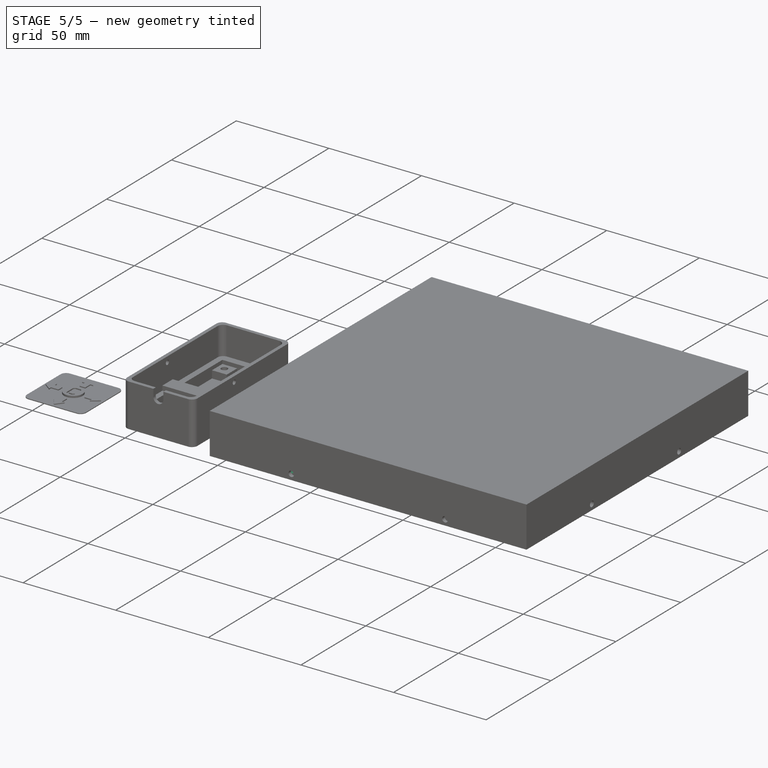
[diagram: stage 5 of 5 — iso view after this stage's code; geometry added in this stage tinted green]
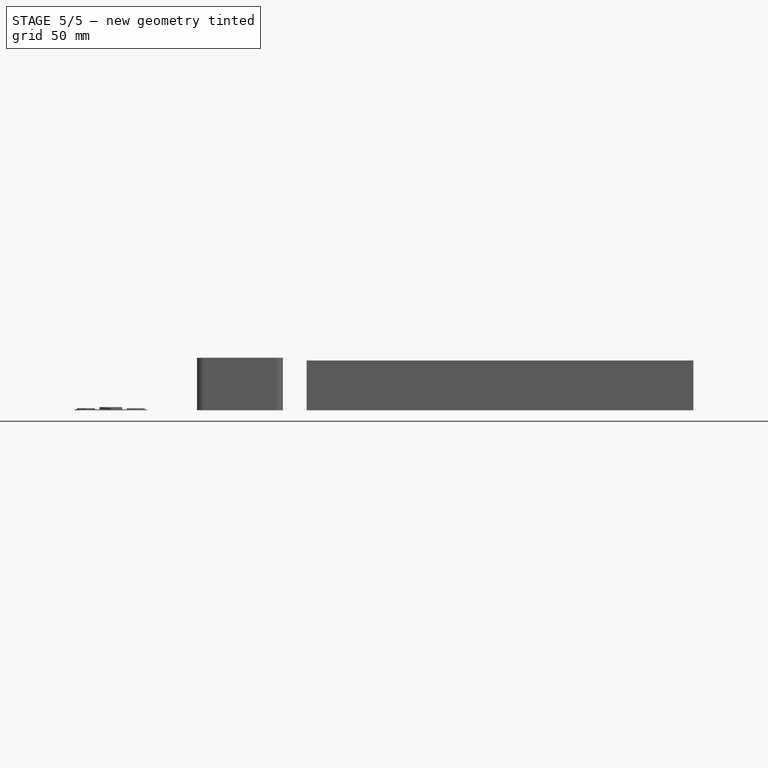
[diagram: stage 5 of 5 — front view after this stage's code; geometry added in this stage tinted green]
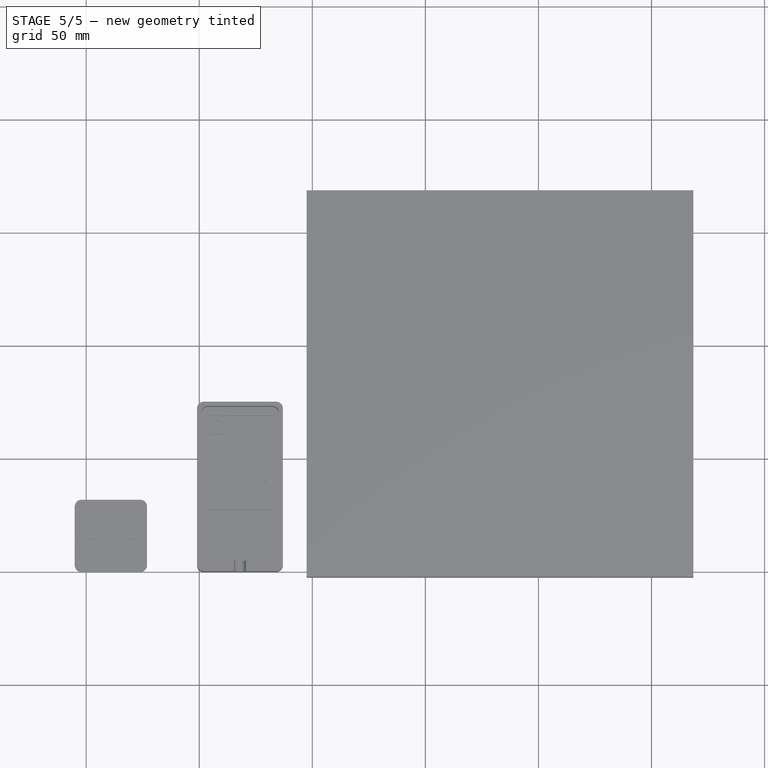
[diagram: stage 5 of 5 — top view after this stage's code; geometry added in this stage tinted green]
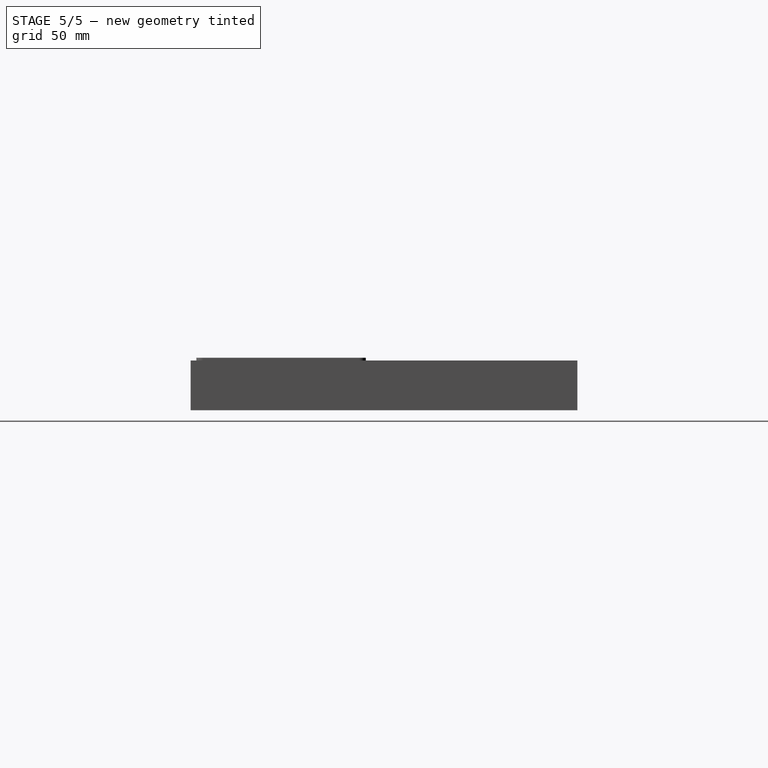
[diagram: stage 5 of 5 — right view after this stage's code; geometry added in this stage tinted green]
FEATURE [Sketcher::SketchObject] Sketch
  FullyConstrained = true
  MapMode = 5
  Support = -> [XY_Plane]
  sketch-geometry (8):
    g0: LineSegment StartX=0 StartY=0 StartZ=0 EndX=164 EndY=0 EndZ=0
    g1: LineSegment StartX=164 StartY=0 StartZ=0 EndX=164 EndY=164 EndZ=0
    g2: LineSegment StartX=164 StartY=164 StartZ=0 EndX=0 EndY=164 EndZ=0
    g3: LineSegment StartX=0 StartY=164 StartZ=0 EndX=0 EndY=0 EndZ=0
    g4: LineSegment StartX=2 StartY=162 StartZ=0 EndX=162 EndY=162 EndZ=0
    g5: LineSegment StartX=162 StartY=162 StartZ=0 EndX=162 EndY=2 EndZ=0
    g6: LineSegment StartX=162 StartY=2 StartZ=0 EndX=2 EndY=2 EndZ=0
    g7: LineSegment StartX=2 StartY=2 StartZ=0 EndX=2 EndY=162 EndZ=0
  constraints (23):
    c: Coincident(g0,g1)
    c: Coincident(g1,g2)
    c: Coincident(g2,g3)
    c: Coincident(g3,g0)
    c: Horizontal(g0)
    c: Horizontal(g2)
    c: Vertical(g1)
    c: Vertical(g3)
    c: Coincident(g0,g-1)
    c: DistanceX(g2,g2) = 164
    c: Equal(g1,g2)
    c: Coincident(g4,g5)
    c: Coincident(g5,g6)
    c: Coincident(g6,g7)
    c: Coincident(g7,g4)
    c: Horizontal(g4)
    c: Horizontal(g6)
    c: Vertical(g5)
    c: Vertical(g7)
    c: DistanceX(g0,g6) = 2
    c: DistanceY(g0,g5) = 2
    c: Equal(g5,g4)
    c: DistanceX(g4,g4) = 160
FEATURE [PartDesign::Pad] Pad
  Direction = (0,0,1)
  Length = 4
  Length2 = 10
  Profile = -> Sketch
  ReferenceAxis = -> Sketch [N_Axis]
  Refine = true
  Type = 0
FEATURE [Sketcher::SketchObject] Sketch001
  ExternalGeometry = -> [Pad]
  FullyConstrained = true
  MapMode = 5
  Placement = pos=(0,0,4) rot=(0,0,1;0rad)
  Support = -> [Pad]
  sketch-geometry (4):
    g0: LineSegment StartX=2 StartY=2 StartZ=0 EndX=11 EndY=2 EndZ=0
    g1: LineSegment StartX=11 StartY=2 StartZ=0 EndX=11 EndY=11 EndZ=0
    g2: LineSegment StartX=11 StartY=11 StartZ=0 EndX=2 EndY=11 EndZ=0
    g3: LineSegment StartX=2 StartY=11 StartZ=0 EndX=2 EndY=2 EndZ=0
  constraints (11):
    c: Coincident(g0,g1)
    c: Coincident(g1,g2)
    c: Coincident(g2,g3)
    c: Coincident(g3,g0)
    c: Horizontal(g0)
    c: Horizontal(g2)
    c: Vertical(g1)
    c: Vertical(g3)
    c: Coincident(g0,g-3)
    c: Equal(g2,g1)
    c: DistanceY(g3,g3) = 9
FEATURE [PartDesign::Body] Body
  Group = -> [Sketch,Pad,Sketch001]
  Origin = -> Origin
  Tip = -> Pad
FEATURE [Part::Box] Box  label="Cubo"
  AttacherType = Attacher::AttachEngine3D
  Height = 12
  Length = 9
  Placement = pos=(2,2,-1) rot=(0,0,1;0rad)
  Width = 9
FEATURE [Part::FeaturePython] Array  # Draft array (typed FeaturePython)
  Angle = 360
  ArrayType = 0
  Axis = (0,0,1)
  Base = -> Box
  Center = (0,0,0)
  Fuse = true
  IntervalAxis = (0,0,0)
  IntervalX = (10.1,0,0)
  IntervalY = (0,10.1,0)
  IntervalZ = (0,0,100)
  NumberCircles = 3
  NumberPolar = 5
  NumberX = 16
  NumberY = 16
  NumberZ = 1
  RadialDistance = 50
  Symmetry = 1
  TangentialDistance = 25
FEATURE [Part::Cut] Cut
  Base = -> Pad
  Refine = true
  Tool = -> Array
FEATURE [App::DocumentObjectGroup] Group  label="Rejilla_"
  Group = -> [Body,Cut]
FEATURE [Part::FeaturePython] Clone  label="Rejilla-4"  # Draft clone (typed FeaturePython)
  AttacherType = Attacher::AttachEngine3D
  Fuse = false
  Objects = -> [Cut]
  Scale = (1,1,1)
FEATURE [PartDesign::Fillet] Fillet004
  Base = -> Chamfer001 [Face33]
  BaseFeature = -> Chamfer001
  Radius = 0.6
  Refine = true
  SupportTransform = false
  UseAllEdges = false
FEATURE [Sketcher::SketchObject] Sketch023
  ExternalGeometry = -> [Fillet004]
  FullyConstrained = true
  MapMode = 5
  Placement = pos=(0,0,3) rot=(0,0,1;0rad)
  Support = -> [Fillet004]
  sketch-geometry (9):
    g0: Circle CenterX=11 CenterY=155 CenterZ=0 NormalX=0 NormalY=0 NormalZ=1 AngleXU=0 Radius=7
    g1: Circle CenterX=83 CenterY=155 CenterZ=0 NormalX=0 NormalY=0 NormalZ=1 AngleXU=0 Radius=7
    g2: Circle CenterX=155 CenterY=155 CenterZ=0 NormalX=0 NormalY=0 NormalZ=1 AngleXU=0 Radius=7
    g3: Circle CenterX=11 CenterY=83 CenterZ=0 NormalX=0 NormalY=0 NormalZ=1 AngleXU=0 Radius=7
    g4: Circle CenterX=83 CenterY=83 CenterZ=0 NormalX=0 NormalY=0 NormalZ=1 AngleXU=0 Radius=7
    g5: Circle CenterX=155 CenterY=83 CenterZ=0 NormalX=0 NormalY=0 NormalZ=1 AngleXU=0 Radius=7
    g6: Circle CenterX=11 CenterY=11 CenterZ=0 NormalX=0 NormalY=0 NormalZ=1 AngleXU=0 Radius=7
    g7: Circle CenterX=83 CenterY=11 CenterZ=0 NormalX=0 NormalY=0 NormalZ=1 AngleXU=0 Radius=7
    g8: Circle CenterX=155 CenterY=11 CenterZ=0 NormalX=0 NormalY=0 NormalZ=1 AngleXU=0 Radius=7
  constraints (18):
    c: Coincident(g0,g-3)
    c: Coincident(g1,g-4)
    c: Coincident(g2,g-5)
    c: Coincident(g3,g-8)
    c: Coincident(g4,g-7)
    c: Coincident(g5,g-6)
    c: Coincident(g6,g-9)
    c: Coincident(g7,g-10)
    c: Coincident(g8,g-11)
    c: Equal(g8,g7)
    c: Equal(g8,g6)
    c: Equal(g8,g3)
    c: Equal(g8,g4)
    c: Equal(g8,g5)
    c: Equal(g8,g2)
    c: Equal(g8,g1)
    c: Equal(g8,g0)
    c: Radius(g8) = 7
FEATURE [PartDesign::Pad] Pad012
  BaseFeature = -> Fillet004
  Direction = (0,0,1)
  Length = 5
  Length2 = 10
  Profile = -> Sketch023
  ReferenceAxis = -> Sketch023 [N_Axis]
  Refine = true
  Type = 0
FEATURE [Sketcher::SketchObject] Sketch024
  ExternalGeometry = -> [Pad012]
  FullyConstrained = false
  MapMode = 5
  Placement = pos=(0,0,0) rot=(1,0,0;1.5708rad)
  Support = -> [Pad012]
  sketch-geometry (5):
    g0: Circle CenterX=39.8993 CenterY=3 CenterZ=0 NormalX=0 NormalY=0 NormalZ=1 AngleXU=0 Radius=1.1
    g1: LineSegment StartX=39.8993 StartY=3 StartZ=0 EndX=119.698 EndY=3 EndZ=0
    g2: Circle CenterX=119.698 CenterY=6 CenterZ=0 NormalX=0 NormalY=0 NormalZ=1 AngleXU=0 Radius=1.1
    g3: LineSegment StartX=79.7985 StartY=3 StartZ=0 EndX=79.7985 EndY=19.1685 EndZ=0
    g4: LineSegment StartX=79.7985 StartY=3 StartZ=0 EndX=0 EndY=3 EndZ=0
  constraints (9):
    c: Coincident(g1,g0)
    c: Horizontal(g1)
    c: Equal(g0,g2)
    c: Radius(g0) = 1.1
    c: Coincident(g4,g3)
    c: Horizontal(g4)
    c: DistanceY(g-3,g0) = 3
    c: PointOnObject(g4,g-2)
    c: Symmetric(g4,g3,g0)
FEATURE [PartDesign::Pocket] Pocket011
  BaseFeature = -> Pad012
  Direction = (0,1,-2e-16)
  Length = 5
  Length2 = 5
  Profile = -> Sketch024
  ReferenceAxis = -> Sketch024 [N_Axis]
  Refine = true
  Type = 1
FEATURE [Sketcher::SketchObject] Sketch025
  ExternalGeometry = -> [Pocket011]
  FullyConstrained = false
  MapMode = 5
  Placement = pos=(166,0,0) rot=(0.57735,0.57735,0.57735;2.0944rad)
  Support = -> [Pocket011]
  sketch-geometry (5):
    g0: LineSegment StartX=41.5 StartY=3 StartZ=0 EndX=124.5 EndY=3 EndZ=0
    g1: LineSegment StartX=83 StartY=26.48 StartZ=0 EndX=83 EndY=-15.1714 EndZ=0
    g2: Circle CenterX=41.5 CenterY=3 CenterZ=0 NormalX=0 NormalY=0 NormalZ=1 AngleXU=0 Radius=1.1
    g3: Circle CenterX=124.5 CenterY=3 CenterZ=0 NormalX=0 NormalY=0 NormalZ=1 AngleXU=0 Radius=1.1
    g4: LineSegment StartX=83 StartY=3 StartZ=0 EndX=0 EndY=3 EndZ=0
  constraints (12):
    c: Symmetric(g-3,g-3,g1)
    c: Symmetric(g0,g0,g1)
    c: DistanceY(g-3,g0) = 3
    c: Coincident(g2,g0)
    c: Coincident(g3,g0)
    c: Equal(g3,g2)
    c: Radius(g3) = 1.1
    c: PointOnObject(g4,g1)
    c: PointOnObject(g4,g-2)
    c: Horizontal(g4)
    c: Symmetric(g4,g4,g2)
    c: DistanceX(g-3,g-3) = 166
FEATURE [PartDesign::Pocket] Pocket012
  BaseFeature = -> Pocket011
  Direction = (-1,0,0)
  Length = 167
  Length2 = 5
  Profile = -> Sketch025
  ReferenceAxis = -> Sketch025 [N_Axis]
  Refine = true
  Type = 0
FEATURE [PartDesign::Body] Body003
  Group = -> [Sketch018,Pad009,Sketch019,Pocket009,Sketch020,Pad010,Sketch021,Pocket010,Sketch022,Pad011,Chamfer001,Fillet004,Sketch023,Pad012,Sketch024,Pocket011,Sketch025,Pocket012]
  Origin = -> Origin003
  Tip = -> Pocket012
FEATURE [App::DocumentObjectGroup] Group006  label="Base-caja-matriz_"
  Group = -> [Body003]
FEATURE [Part::FeaturePython] Clone004  label="Base-caja-matriz"  # Draft clone (typed FeaturePython)
  AttacherType = Attacher::AttachEngine3D
  Fuse = false
  Objects = -> [Pocket012]
  Scale = (1,1,1)
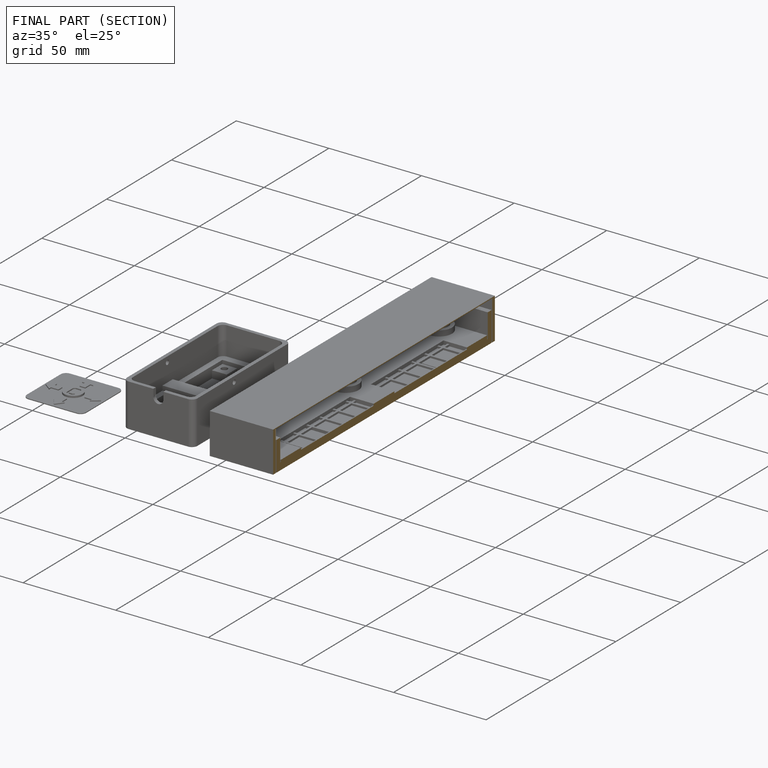
[diagram: finished part — half-section view (interior)]
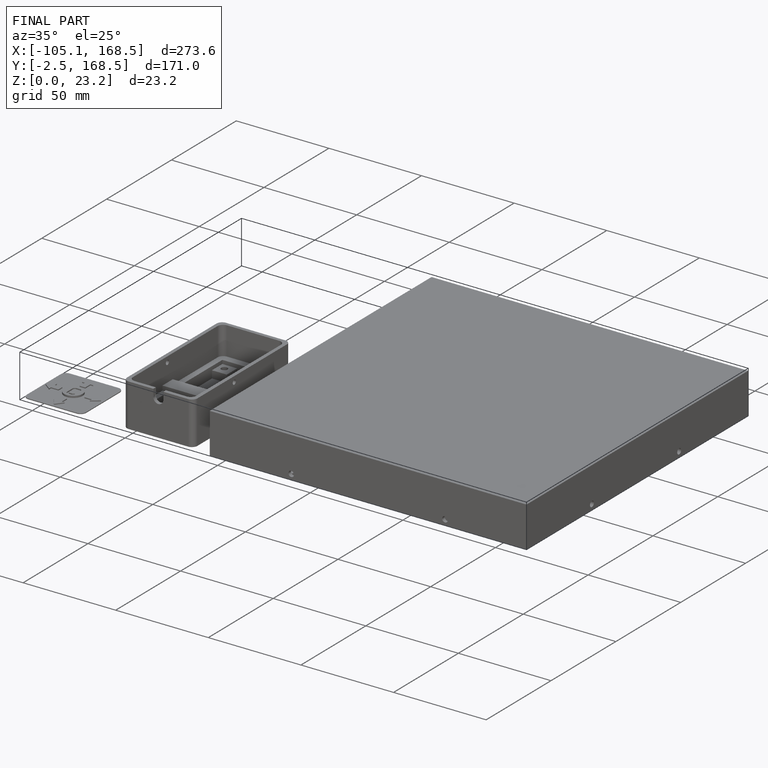
[diagram: finished part — iso view with bounding-box wireframe]
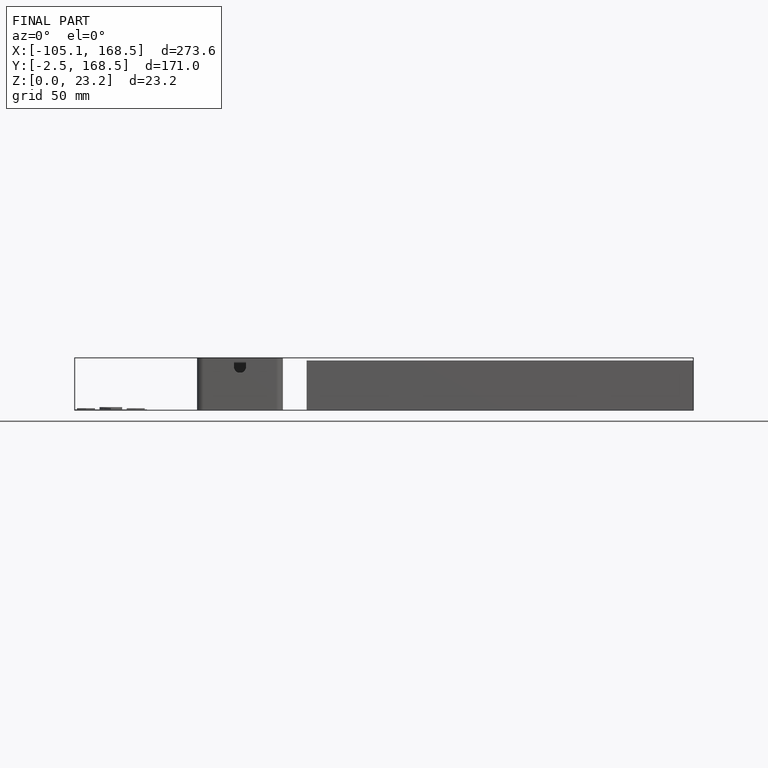
[diagram: finished part — front view with bounding-box wireframe]
